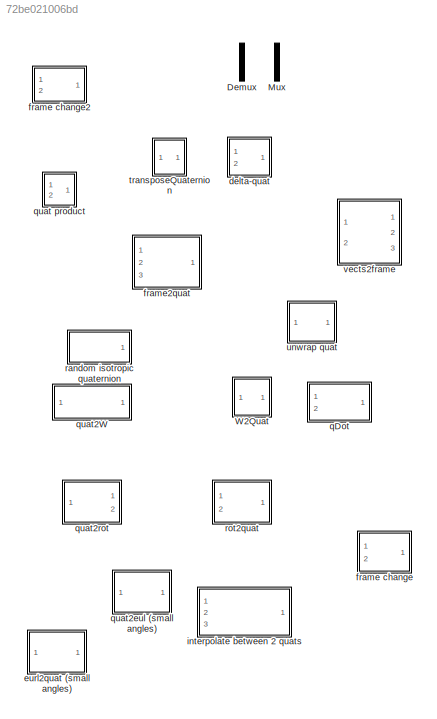
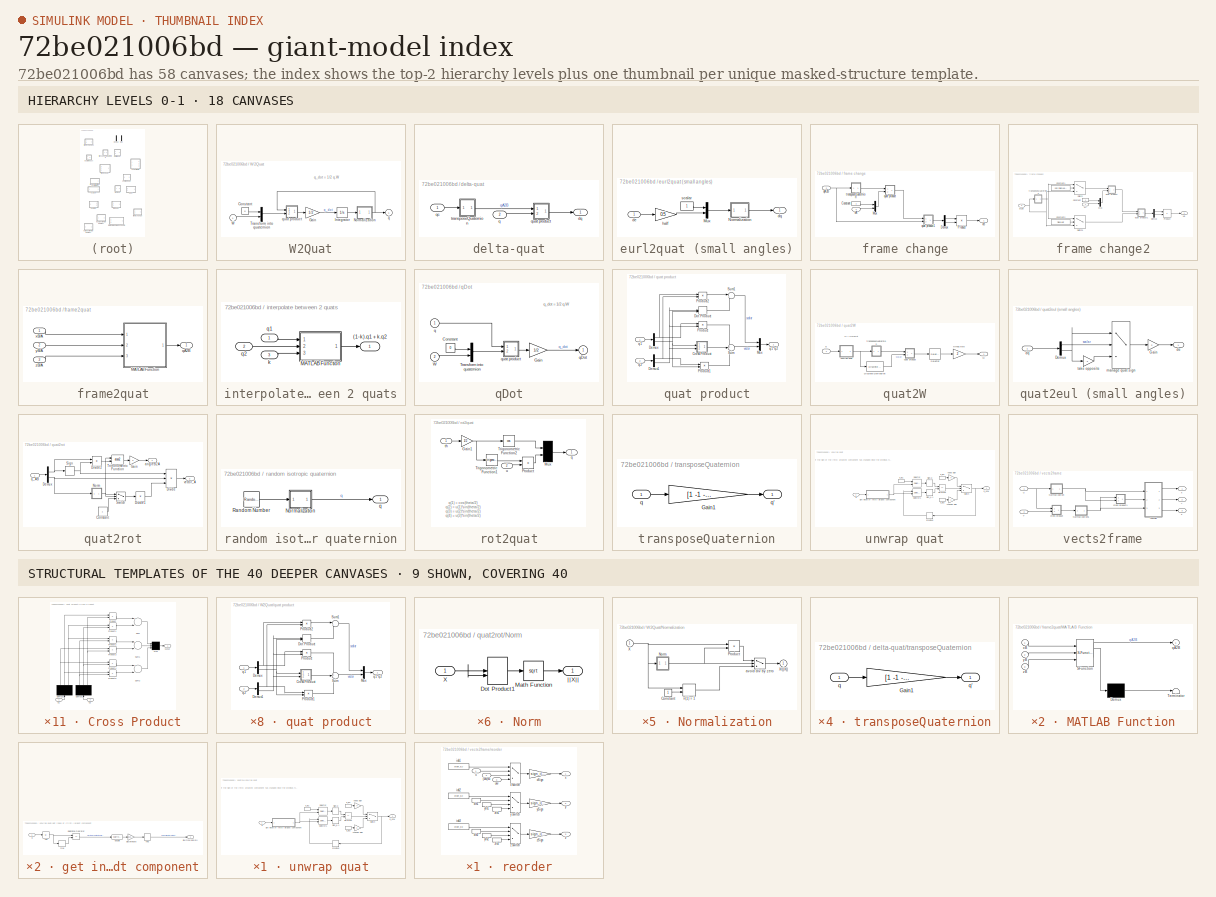
[diagram: thumbnail index - top-2 hierarchy levels (18 canvases) + 9 structural-template representatives of the remaining 40 canvases]
MODEL slx_72be021006bd
KIND model
CONFIG AbsTol = auto
CONFIG FixedStep = auto
CONFIG MaxStep = auto
CONFIG MinStep = auto
CONFIG RelTol = 1e-3
CONFIG SampleTimeConstraint = Unconstrained
CONFIG Solver = ode45
CONFIG SolverMode = Auto
CONFIG SolverName = ode45
CONFIG StartTime = 0.0
CONFIG StopTime = 10.0
BLOCK [Demux] Demux
  DisplayOption = bar
  Outputs = [1 3]
  Ports = [1, 2]
BLOCK [Mux] Mux
  DisplayOption = bar
  Inputs = 2
  Ports = [2, 1]
BLOCK [SubSystem] W2Quat
  Ports = [1, 1]
  RequestExecContextInheritance = off
  Tag = 40
BLOCK [Constant] W2Quat/Constant
  Value = 0
BLOCK [Gain] W2Quat/Gain
  Gain = 1/2
BLOCK [Integrator] W2Quat/Integrator
  InitialCondition = q_init
  Ports = [1, 1]
BLOCK [SubSystem] W2Quat/Normalization
  Ports = [1, 1]
  RequestExecContextInheritance = off
  Tag = 74
BLOCK [Constant] W2Quat/Normalization/Constant
BLOCK [SubSystem] W2Quat/Normalization/Norm
  AttributesFormatString = (#%<Tag>)
  Ports = [1, 1]
  RequestExecContextInheritance = off
BLOCK [DotProduct] W2Quat/Normalization/Norm/Dot Product1
  OutDataTypeStr = Inherit: Inherit via internal rule
BLOCK [Math] W2Quat/Normalization/Norm/Math Function
  Operator = sqrt
  Ports = [1, 1]
BLOCK [Inport] W2Quat/Normalization/Norm/X
  IconDisplay = Port number
BLOCK [Outport] W2Quat/Normalization/Norm/||X||
  IconDisplay = Port number
  InitialOutput = 0
BLOCK [Product] W2Quat/Normalization/Product
  InputSameDT = off
  Inputs = */
  OutDataTypeStr = Inherit: Inherit via internal rule
  Ports = [2, 1]
  SaturateOnIntegerOverflow = off
BLOCK [Inport] W2Quat/Normalization/X
  AttributesFormatString = (#%<Tag>)
  IconDisplay = Port number
BLOCK [Outport] W2Quat/Normalization/X//||X||
  AttributesFormatString = (#%<Tag>)
  IconDisplay = Port number
  InitialOutput = 0
BLOCK [Switch] W2Quat/Normalization/avoid div by zero
  Criteria = u2 ~= 0
  InputSameDT = off
  SaturateOnIntegerOverflow = off
BLOCK [Assignment] W2Quat/Normalization/x(1) = 1
  DiagnosticForDimensions = Warning
  Ports = [2, 1]
BLOCK [Mux] W2Quat/Transform into quaternion
  DisplayOption = bar
  Inputs = 2
  Ports = [2, 1]
BLOCK [Inport] W2Quat/W
  IconDisplay = Port number
  PortDimensions = 3
BLOCK [Outport] W2Quat/q
  IconDisplay = Port number
  InitialOutput = 0
  PortDimensions = 4
BLOCK [SubSystem] W2Quat/quat product
  Ports = [2, 1]
  RequestExecContextInheritance = off
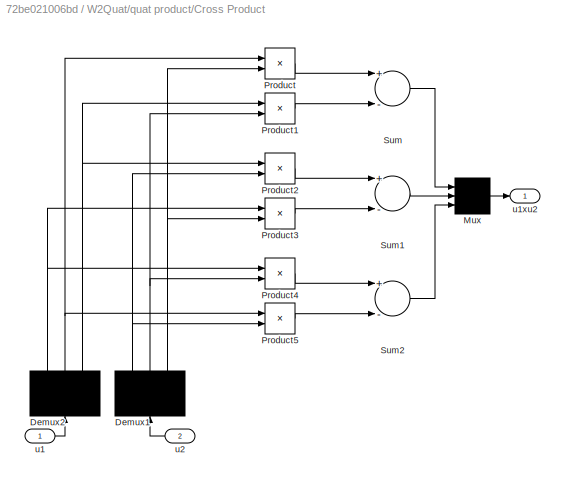
BLOCK [SubSystem] W2Quat/quat product/Cross Product
  Ports = [2, 1]
  RequestExecContextInheritance = off
  Tag = 68
BLOCK [Demux] W2Quat/quat product/Cross Product/Demux1
  Outputs = 3
  Ports = [1, 3]
BLOCK [Demux] W2Quat/quat product/Cross Product/Demux2
  Outputs = 3
  Ports = [1, 3]
BLOCK [Mux] W2Quat/quat product/Cross Product/Mux
  Inputs = 3
  Ports = [3, 1]
BLOCK [Product] W2Quat/quat product/Cross Product/Product
  Ports = [2, 1]
BLOCK [Product] W2Quat/quat product/Cross Product/Product1
  Ports = [2, 1]
BLOCK [Product] W2Quat/quat product/Cross Product/Product2
  Ports = [2, 1]
BLOCK [Product] W2Quat/quat product/Cross Product/Product3
  Ports = [2, 1]
BLOCK [Product] W2Quat/quat product/Cross Product/Product4
  Ports = [2, 1]
BLOCK [Product] W2Quat/quat product/Cross Product/Product5
  Ports = [2, 1]
BLOCK [Sum] W2Quat/quat product/Cross Product/Sum
  Inputs = +-
  Ports = [2, 1]
BLOCK [Sum] W2Quat/quat product/Cross Product/Sum1
  Inputs = +-
  Ports = [2, 1]
BLOCK [Sum] W2Quat/quat product/Cross Product/Sum2
  Inputs = +-
  Ports = [2, 1]
BLOCK [Inport] W2Quat/quat product/Cross Product/u1
  IconDisplay = Port number
BLOCK [Outport] W2Quat/quat product/Cross Product/u1xu2
  IconDisplay = Port number
  InitialOutput = 0
BLOCK [Inport] W2Quat/quat product/Cross Product/u2
  IconDisplay = Port number
  Port = 2
BLOCK [Demux] W2Quat/quat product/Demux
  DisplayOption = bar
  Outputs = [1 3]
  Ports = [1, 2]
BLOCK [Demux] W2Quat/quat product/Demux1
  DisplayOption = bar
  Outputs = [1 3]
  Ports = [1, 2]
BLOCK [DotProduct] W2Quat/quat product/Dot Product
  OutDataTypeStr = Inherit: Inherit via internal rule
BLOCK [Mux] W2Quat/quat product/Mux
  DisplayOption = bar
  Inputs = 2
  Ports = [2, 1]
BLOCK [Product] W2Quat/quat product/Product
  InputSameDT = off
  Ports = [2, 1]
  RndMeth = Floor
BLOCK [Product] W2Quat/quat product/Product1
  InputSameDT = off
  Ports = [2, 1]
  RndMeth = Floor
BLOCK [Product] W2Quat/quat product/Product2
  InputSameDT = off
  Ports = [2, 1]
  RndMeth = Floor
BLOCK [Sum] W2Quat/quat product/Sum
  IconShape = round
  InputSameDT = off
  Inputs = +++
  OutDataTypeStr = Inherit: Inherit via internal rule
  Ports = [3, 1]
BLOCK [Sum] W2Quat/quat product/Sum1
  IconShape = round
  InputSameDT = off
  Inputs = |+-
  OutDataTypeStr = Inherit: Inherit via internal rule
  Ports = [2, 1]
BLOCK [Inport] W2Quat/quat product/q1
  IconDisplay = Port number
BLOCK [Outport] W2Quat/quat product/q1*q2
  IconDisplay = Port number
BLOCK [Inport] W2Quat/quat product/q2
  IconDisplay = Port number
  Port = 2
BLOCK [SubSystem] delta-quat
  Ports = [2, 1]
  RequestExecContextInheritance = off
BLOCK [Outport] delta-quat/dq
  IconDisplay = Port number
  PortDimensions = 4
BLOCK [Inport] delta-quat/q
  IconDisplay = Port number
  Port = 2
  PortDimensions = 4
BLOCK [Inport] delta-quat/qc
  IconDisplay = Port number
  PortDimensions = 4
BLOCK [SubSystem] delta-quat/quat product
  Ports = [2, 1]
  RequestExecContextInheritance = off
BLOCK [SubSystem] delta-quat/quat product/Cross Product
  Ports = [2, 1]
  RequestExecContextInheritance = off
  Tag = 68
BLOCK [Demux] delta-quat/quat product/Cross Product/Demux1
  Outputs = 3
  Ports = [1, 3]
BLOCK [Demux] delta-quat/quat product/Cross Product/Demux2
  Outputs = 3
  Ports = [1, 3]
BLOCK [Mux] delta-quat/quat product/Cross Product/Mux
  Inputs = 3
  Ports = [3, 1]
BLOCK [Product] delta-quat/quat product/Cross Product/Product
  Ports = [2, 1]
BLOCK [Product] delta-quat/quat product/Cross Product/Product1
  Ports = [2, 1]
BLOCK [Product] delta-quat/quat product/Cross Product/Product2
  Ports = [2, 1]
BLOCK [Product] delta-quat/quat product/Cross Product/Product3
  Ports = [2, 1]
BLOCK [Product] delta-quat/quat product/Cross Product/Product4
  Ports = [2, 1]
BLOCK [Product] delta-quat/quat product/Cross Product/Product5
  Ports = [2, 1]
BLOCK [Sum] delta-quat/quat product/Cross Product/Sum
  Inputs = +-
  Ports = [2, 1]
BLOCK [Sum] delta-quat/quat product/Cross Product/Sum1
  Inputs = +-
  Ports = [2, 1]
BLOCK [Sum] delta-quat/quat product/Cross Product/Sum2
  Inputs = +-
  Ports = [2, 1]
BLOCK [Inport] delta-quat/quat product/Cross Product/u1
  IconDisplay = Port number
BLOCK [Outport] delta-quat/quat product/Cross Product/u1xu2
  IconDisplay = Port number
  InitialOutput = 0
BLOCK [Inport] delta-quat/quat product/Cross Product/u2
  IconDisplay = Port number
  Port = 2
BLOCK [Demux] delta-quat/quat product/Demux
  DisplayOption = bar
  Outputs = [1 3]
  Ports = [1, 2]
BLOCK [Demux] delta-quat/quat product/Demux1
  DisplayOption = bar
  Outputs = [1 3]
  Ports = [1, 2]
BLOCK [DotProduct] delta-quat/quat product/Dot Product
  OutDataTypeStr = Inherit: Inherit via internal rule
BLOCK [Mux] delta-quat/quat product/Mux
  DisplayOption = bar
  Inputs = 2
  Ports = [2, 1]
BLOCK [Product] delta-quat/quat product/Product
  InputSameDT = off
  Ports = [2, 1]
  RndMeth = Floor
BLOCK [Product] delta-quat/quat product/Product1
  InputSameDT = off
  Ports = [2, 1]
  RndMeth = Floor
BLOCK [Product] delta-quat/quat product/Product2
  InputSameDT = off
  Ports = [2, 1]
  RndMeth = Floor
BLOCK [Sum] delta-quat/quat product/Sum
  IconShape = round
  InputSameDT = off
  Inputs = +++
  OutDataTypeStr = Inherit: Inherit via internal rule
  Ports = [3, 1]
BLOCK [Sum] delta-quat/quat product/Sum1
  IconShape = round
  InputSameDT = off
  Inputs = |+-
  OutDataTypeStr = Inherit: Inherit via internal rule
  Ports = [2, 1]
BLOCK [Inport] delta-quat/quat product/q1
  IconDisplay = Port number
BLOCK [Outport] delta-quat/quat product/q1*q2
  IconDisplay = Port number
BLOCK [Inport] delta-quat/quat product/q2
  IconDisplay = Port number
  Port = 2
BLOCK [SubSystem] delta-quat/transposeQuaternion
  Ports = [1, 1]
  RequestExecContextInheritance = off
BLOCK [Gain] delta-quat/transposeQuaternion/Gain1
  Gain = [1 -1 -1 -1]
BLOCK [Inport] delta-quat/transposeQuaternion/q
  IconDisplay = Port number
BLOCK [Outport] delta-quat/transposeQuaternion/q'
  IconDisplay = Port number
BLOCK [SubSystem] eurl2quat (small angles)
  Ports = [1, 1]
  RequestExecContextInheritance = off
BLOCK [Mux] eurl2quat (small angles)/Mux
  DisplayOption = bar
  Inputs = 2
  Ports = [2, 1]
BLOCK [SubSystem] eurl2quat (small angles)/Normalization
  Ports = [1, 1]
  RequestExecContextInheritance = off
  Tag = 74
BLOCK [Constant] eurl2quat (small angles)/Normalization/Constant
BLOCK [SubSystem] eurl2quat (small angles)/Normalization/Norm
  AttributesFormatString = (#%<Tag>)
  Ports = [1, 1]
  RequestExecContextInheritance = off
BLOCK [DotProduct] eurl2quat (small angles)/Normalization/Norm/Dot Product1
  OutDataTypeStr = Inherit: Inherit via internal rule
BLOCK [Math] eurl2quat (small angles)/Normalization/Norm/Math Function
  Operator = sqrt
  Ports = [1, 1]
BLOCK [Inport] eurl2quat (small angles)/Normalization/Norm/X
  IconDisplay = Port number
BLOCK [Outport] eurl2quat (small angles)/Normalization/Norm/||X||
  IconDisplay = Port number
  InitialOutput = 0
BLOCK [Product] eurl2quat (small angles)/Normalization/Product
  InputSameDT = off
  Inputs = */
  OutDataTypeStr = Inherit: Inherit via internal rule
  Ports = [2, 1]
  SaturateOnIntegerOverflow = off
BLOCK [Inport] eurl2quat (small angles)/Normalization/X
  AttributesFormatString = (#%<Tag>)
  IconDisplay = Port number
BLOCK [Outport] eurl2quat (small angles)/Normalization/X//||X||
  AttributesFormatString = (#%<Tag>)
  IconDisplay = Port number
  InitialOutput = 0
BLOCK [Switch] eurl2quat (small angles)/Normalization/avoid div by zero
  Criteria = u2 ~= 0
  InputSameDT = off
  SaturateOnIntegerOverflow = off
BLOCK [Assignment] eurl2quat (small angles)/Normalization/x(1) = 1
  DiagnosticForDimensions = Warning
  Ports = [2, 1]
BLOCK [Inport] eurl2quat (small angles)/de
  IconDisplay = Port number
  PortDimensions = 3
BLOCK [Outport] eurl2quat (small angles)/dq
  IconDisplay = Port number
  PortDimensions = 4
BLOCK [Gain] eurl2quat (small angles)/half
  Gain = 0.5
  OutDataTypeStr = Inherit: Inherit via internal rule
  ParamDataTypeStr = Inherit: Inherit via internal rule
  SaturateOnIntegerOverflow = off
BLOCK [Constant] eurl2quat (small angles)/scalar
BLOCK [SubSystem] frame change
  Ports = [2, 1]
  RequestExecContextInheritance = off
BLOCK [Constant] frame change/Constant
BLOCK [Demux] frame change/Demux
  DisplayOption = bar
  Outputs = [1 3]
  Ports = [1, 2]
BLOCK [Mux] frame change/Mux
  DisplayOption = bar
  Inputs = 2
  Ports = [2, 1]
BLOCK [Product] frame change/Product
  InputSameDT = off
  Inputs = /*
  Ports = [2, 1]
  RndMeth = Floor
BLOCK [Inport] frame change/qA2B
  IconDisplay = Port number
  Port = 2
BLOCK [SubSystem] frame change/quat product
  Ports = [2, 1]
  RequestExecContextInheritance = off
BLOCK [SubSystem] frame change/quat product/Cross Product
  Ports = [2, 1]
  RequestExecContextInheritance = off
  Tag = 68
BLOCK [Demux] frame change/quat product/Cross Product/Demux1
  Outputs = 3
  Ports = [1, 3]
BLOCK [Demux] frame change/quat product/Cross Product/Demux2
  Outputs = 3
  Ports = [1, 3]
BLOCK [Mux] frame change/quat product/Cross Product/Mux
  Inputs = 3
  Ports = [3, 1]
BLOCK [Product] frame change/quat product/Cross Product/Product
  Ports = [2, 1]
BLOCK [Product] frame change/quat product/Cross Product/Product1
  Ports = [2, 1]
BLOCK [Product] frame change/quat product/Cross Product/Product2
  Ports = [2, 1]
BLOCK [Product] frame change/quat product/Cross Product/Product3
  Ports = [2, 1]
BLOCK [Product] frame change/quat product/Cross Product/Product4
  Ports = [2, 1]
BLOCK [Product] frame change/quat product/Cross Product/Product5
  Ports = [2, 1]
BLOCK [Sum] frame change/quat product/Cross Product/Sum
  Inputs = +-
  Ports = [2, 1]
BLOCK [Sum] frame change/quat product/Cross Product/Sum1
  Inputs = +-
  Ports = [2, 1]
BLOCK [Sum] frame change/quat product/Cross Product/Sum2
  Inputs = +-
  Ports = [2, 1]
BLOCK [Inport] frame change/quat product/Cross Product/u1
  IconDisplay = Port number
BLOCK [Outport] frame change/quat product/Cross Product/u1xu2
  IconDisplay = Port number
  InitialOutput = 0
BLOCK [Inport] frame change/quat product/Cross Product/u2
  IconDisplay = Port number
  Port = 2
BLOCK [Demux] frame change/quat product/Demux
  DisplayOption = bar
  Outputs = [1 3]
  Ports = [1, 2]
BLOCK [Demux] frame change/quat product/Demux1
  DisplayOption = bar
  Outputs = [1 3]
  Ports = [1, 2]
BLOCK [DotProduct] frame change/quat product/Dot Product
  OutDataTypeStr = Inherit: Inherit via internal rule
BLOCK [Mux] frame change/quat product/Mux
  DisplayOption = bar
  Inputs = 2
  Ports = [2, 1]
BLOCK [Product] frame change/quat product/Product
  InputSameDT = off
  Ports = [2, 1]
  RndMeth = Floor
BLOCK [Product] frame change/quat product/Product1
  InputSameDT = off
  Ports = [2, 1]
  RndMeth = Floor
BLOCK [Product] frame change/quat product/Product2
  InputSameDT = off
  Ports = [2, 1]
  RndMeth = Floor
BLOCK [Sum] frame change/quat product/Sum
  IconShape = round
  InputSameDT = off
  Inputs = +++
  OutDataTypeStr = Inherit: Inherit via internal rule
  Ports = [3, 1]
BLOCK [Sum] frame change/quat product/Sum1
  IconShape = round
  InputSameDT = off
  Inputs = |+-
  OutDataTypeStr = Inherit: Inherit via internal rule
  Ports = [2, 1]
BLOCK [Inport] frame change/quat product/q1
  IconDisplay = Port number
BLOCK [Outport] frame change/quat product/q1*q2
  IconDisplay = Port number
BLOCK [Inport] frame change/quat product/q2
  IconDisplay = Port number
  Port = 2
BLOCK [SubSystem] frame change/quat product1
  Ports = [2, 1]
  RequestExecContextInheritance = off
BLOCK [SubSystem] frame change/quat product1/Cross Product
  Ports = [2, 1]
  RequestExecContextInheritance = off
  Tag = 68
BLOCK [Demux] frame change/quat product1/Cross Product/Demux1
  Outputs = 3
  Ports = [1, 3]
BLOCK [Demux] frame change/quat product1/Cross Product/Demux2
  Outputs = 3
  Ports = [1, 3]
BLOCK [Mux] frame change/quat product1/Cross Product/Mux
  Inputs = 3
  Ports = [3, 1]
BLOCK [Product] frame change/quat product1/Cross Product/Product
  Ports = [2, 1]
BLOCK [Product] frame change/quat product1/Cross Product/Product1
  Ports = [2, 1]
BLOCK [Product] frame change/quat product1/Cross Product/Product2
  Ports = [2, 1]
BLOCK [Product] frame change/quat product1/Cross Product/Product3
  Ports = [2, 1]
BLOCK [Product] frame change/quat product1/Cross Product/Product4
  Ports = [2, 1]
BLOCK [Product] frame change/quat product1/Cross Product/Product5
  Ports = [2, 1]
BLOCK [Sum] frame change/quat product1/Cross Product/Sum
  Inputs = +-
  Ports = [2, 1]
BLOCK [Sum] frame change/quat product1/Cross Product/Sum1
  Inputs = +-
  Ports = [2, 1]
BLOCK [Sum] frame change/quat product1/Cross Product/Sum2
  Inputs = +-
  Ports = [2, 1]
BLOCK [Inport] frame change/quat product1/Cross Product/u1
  IconDisplay = Port number
BLOCK [Outport] frame change/quat product1/Cross Product/u1xu2
  IconDisplay = Port number
  InitialOutput = 0
BLOCK [Inport] frame change/quat product1/Cross Product/u2
  IconDisplay = Port number
  Port = 2
BLOCK [Demux] frame change/quat product1/Demux
  DisplayOption = bar
  Outputs = [1 3]
  Ports = [1, 2]
BLOCK [Demux] frame change/quat product1/Demux1
  DisplayOption = bar
  Outputs = [1 3]
  Ports = [1, 2]
BLOCK [DotProduct] frame change/quat product1/Dot Product
  OutDataTypeStr = Inherit: Inherit via internal rule
BLOCK [Mux] frame change/quat product1/Mux
  DisplayOption = bar
  Inputs = 2
  Ports = [2, 1]
BLOCK [Product] frame change/quat product1/Product
  InputSameDT = off
  Ports = [2, 1]
  RndMeth = Floor
BLOCK [Product] frame change/quat product1/Product1
  InputSameDT = off
  Ports = [2, 1]
  RndMeth = Floor
BLOCK [Product] frame change/quat product1/Product2
  InputSameDT = off
  Ports = [2, 1]
  RndMeth = Floor
BLOCK [Sum] frame change/quat product1/Sum
  IconShape = round
  InputSameDT = off
  Inputs = +++
  OutDataTypeStr = Inherit: Inherit via internal rule
  Ports = [3, 1]
BLOCK [Sum] frame change/quat product1/Sum1
  IconShape = round
  InputSameDT = off
  Inputs = |+-
  OutDataTypeStr = Inherit: Inherit via internal rule
  Ports = [2, 1]
BLOCK [Inport] frame change/quat product1/q1
  IconDisplay = Port number
BLOCK [Outport] frame change/quat product1/q1*q2
  IconDisplay = Port number
BLOCK [Inport] frame change/quat product1/q2
  IconDisplay = Port number
  Port = 2
BLOCK [SubSystem] frame change/transposeQuaternion
  Ports = [1, 1]
  RequestExecContextInheritance = off
BLOCK [Gain] frame change/transposeQuaternion/Gain1
  Gain = [1 -1 -1 -1]
BLOCK [Inport] frame change/transposeQuaternion/q
  IconDisplay = Port number
BLOCK [Outport] frame change/transposeQuaternion/q'
  IconDisplay = Port number
BLOCK [Inport] frame change/vA
  IconDisplay = Port number
BLOCK [Outport] frame change/vB
  IconDisplay = Port number
BLOCK [SubSystem] frame change2
  Ports = [2, 1]
  RequestExecContextInheritance = off
BLOCK [Constant] frame change2/Constant
BLOCK [Constant] frame change2/Constant1
  Value = not(flipQuat)
BLOCK [Constant] frame change2/Constant2
  Value = flipQuat
BLOCK [Demux] frame change2/Demux
  DisplayOption = bar
  Outputs = [1 3]
  Ports = [1, 2]
BLOCK [Mux] frame change2/Mux
  DisplayOption = bar
  Inputs = 2
  Ports = [2, 1]
BLOCK [Product] frame change2/Product
  InputSameDT = off
  Inputs = /*
  Ports = [2, 1]
  RndMeth = Floor
BLOCK [Switch] frame change2/Switch
  Criteria = u2 ~= 0
  InputSameDT = off
  SaturateOnIntegerOverflow = off
BLOCK [Switch] frame change2/Switch1
  Criteria = u2 ~= 0
  InputSameDT = off
  SaturateOnIntegerOverflow = off
BLOCK [Inport] frame change2/qA2B
  IconDisplay = Port number
  Port = 2
  PortDimensions = 4
BLOCK [SubSystem] frame change2/quat product
  Ports = [2, 1]
  RequestExecContextInheritance = off
BLOCK [SubSystem] frame change2/quat product/Cross Product
  Ports = [2, 1]
  RequestExecContextInheritance = off
  Tag = 68
BLOCK [Demux] frame change2/quat product/Cross Product/Demux1
  Outputs = 3
  Ports = [1, 3]
BLOCK [Demux] frame change2/quat product/Cross Product/Demux2
  Outputs = 3
  Ports = [1, 3]
BLOCK [Mux] frame change2/quat product/Cross Product/Mux
  Inputs = 3
  Ports = [3, 1]
BLOCK [Product] frame change2/quat product/Cross Product/Product
  Ports = [2, 1]
BLOCK [Product] frame change2/quat product/Cross Product/Product1
  Ports = [2, 1]
BLOCK [Product] frame change2/quat product/Cross Product/Product2
  Ports = [2, 1]
BLOCK [Product] frame change2/quat product/Cross Product/Product3
  Ports = [2, 1]
BLOCK [Product] frame change2/quat product/Cross Product/Product4
  Ports = [2, 1]
BLOCK [Product] frame change2/quat product/Cross Product/Product5
  Ports = [2, 1]
BLOCK [Sum] frame change2/quat product/Cross Product/Sum
  Inputs = +-
  Ports = [2, 1]
BLOCK [Sum] frame change2/quat product/Cross Product/Sum1
  Inputs = +-
  Ports = [2, 1]
BLOCK [Sum] frame change2/quat product/Cross Product/Sum2
  Inputs = +-
  Ports = [2, 1]
BLOCK [Inport] frame change2/quat product/Cross Product/u1
  IconDisplay = Port number
BLOCK [Outport] frame change2/quat product/Cross Product/u1xu2
  IconDisplay = Port number
  InitialOutput = 0
BLOCK [Inport] frame change2/quat product/Cross Product/u2
  IconDisplay = Port number
  Port = 2
BLOCK [Demux] frame change2/quat product/Demux
  DisplayOption = bar
  Outputs = [1 3]
  Ports = [1, 2]
BLOCK [Demux] frame change2/quat product/Demux1
  DisplayOption = bar
  Outputs = [1 3]
  Ports = [1, 2]
BLOCK [DotProduct] frame change2/quat product/Dot Product
  OutDataTypeStr = Inherit: Inherit via internal rule
BLOCK [Mux] frame change2/quat product/Mux
  DisplayOption = bar
  Inputs = 2
  Ports = [2, 1]
BLOCK [Product] frame change2/quat product/Product
  InputSameDT = off
  Ports = [2, 1]
  RndMeth = Floor
BLOCK [Product] frame change2/quat product/Product1
  InputSameDT = off
  Ports = [2, 1]
  RndMeth = Floor
BLOCK [Product] frame change2/quat product/Product2
  InputSameDT = off
  Ports = [2, 1]
  RndMeth = Floor
BLOCK [Sum] frame change2/quat product/Sum
  IconShape = round
  InputSameDT = off
  Inputs = +++
  OutDataTypeStr = Inherit: Inherit via internal rule
  Ports = [3, 1]
BLOCK [Sum] frame change2/quat product/Sum1
  IconShape = round
  InputSameDT = off
  Inputs = |+-
  OutDataTypeStr = Inherit: Inherit via internal rule
  Ports = [2, 1]
BLOCK [Inport] frame change2/quat product/q1
  IconDisplay = Port number
BLOCK [Outport] frame change2/quat product/q1*q2
  IconDisplay = Port number
BLOCK [Inport] frame change2/quat product/q2
  IconDisplay = Port number
  Port = 2
BLOCK [SubSystem] frame change2/quat product1
  Ports = [2, 1]
  RequestExecContextInheritance = off
BLOCK [SubSystem] frame change2/quat product1/Cross Product
  Ports = [2, 1]
  RequestExecContextInheritance = off
  Tag = 68
BLOCK [Demux] frame change2/quat product1/Cross Product/Demux1
  Outputs = 3
  Ports = [1, 3]
BLOCK [Demux] frame change2/quat product1/Cross Product/Demux2
  Outputs = 3
  Ports = [1, 3]
BLOCK [Mux] frame change2/quat product1/Cross Product/Mux
  Inputs = 3
  Ports = [3, 1]
BLOCK [Product] frame change2/quat product1/Cross Product/Product
  Ports = [2, 1]
BLOCK [Product] frame change2/quat product1/Cross Product/Product1
  Ports = [2, 1]
BLOCK [Product] frame change2/quat product1/Cross Product/Product2
  Ports = [2, 1]
BLOCK [Product] frame change2/quat product1/Cross Product/Product3
  Ports = [2, 1]
BLOCK [Product] frame change2/quat product1/Cross Product/Product4
  Ports = [2, 1]
BLOCK [Product] frame change2/quat product1/Cross Product/Product5
  Ports = [2, 1]
BLOCK [Sum] frame change2/quat product1/Cross Product/Sum
  Inputs = +-
  Ports = [2, 1]
BLOCK [Sum] frame change2/quat product1/Cross Product/Sum1
  Inputs = +-
  Ports = [2, 1]
BLOCK [Sum] frame change2/quat product1/Cross Product/Sum2
  Inputs = +-
  Ports = [2, 1]
BLOCK [Inport] frame change2/quat product1/Cross Product/u1
  IconDisplay = Port number
BLOCK [Outport] frame change2/quat product1/Cross Product/u1xu2
  IconDisplay = Port number
  InitialOutput = 0
BLOCK [Inport] frame change2/quat product1/Cross Product/u2
  IconDisplay = Port number
  Port = 2
BLOCK [Demux] frame change2/quat product1/Demux
  DisplayOption = bar
  Outputs = [1 3]
  Ports = [1, 2]
BLOCK [Demux] frame change2/quat product1/Demux1
  DisplayOption = bar
  Outputs = [1 3]
  Ports = [1, 2]
BLOCK [DotProduct] frame change2/quat product1/Dot Product
  OutDataTypeStr = Inherit: Inherit via internal rule
BLOCK [Mux] frame change2/quat product1/Mux
  DisplayOption = bar
  Inputs = 2
  Ports = [2, 1]
BLOCK [Product] frame change2/quat product1/Product
  InputSameDT = off
  Ports = [2, 1]
  RndMeth = Floor
BLOCK [Product] frame change2/quat product1/Product1
  InputSameDT = off
  Ports = [2, 1]
  RndMeth = Floor
BLOCK [Product] frame change2/quat product1/Product2
  InputSameDT = off
  Ports = [2, 1]
  RndMeth = Floor
BLOCK [Sum] frame change2/quat product1/Sum
  IconShape = round
  InputSameDT = off
  Inputs = +++
  OutDataTypeStr = Inherit: Inherit via internal rule
  Ports = [3, 1]
BLOCK [Sum] frame change2/quat product1/Sum1
  IconShape = round
  InputSameDT = off
  Inputs = |+-
  OutDataTypeStr = Inherit: Inherit via internal rule
  Ports = [2, 1]
BLOCK [Inport] frame change2/quat product1/q1
  IconDisplay = Port number
BLOCK [Outport] frame change2/quat product1/q1*q2
  IconDisplay = Port number
BLOCK [Inport] frame change2/quat product1/q2
  IconDisplay = Port number
  Port = 2
BLOCK [SubSystem] frame change2/transposeQuaternion
  Ports = [1, 1]
  RequestExecContextInheritance = off
BLOCK [Gain] frame change2/transposeQuaternion/Gain1
  Gain = [1 -1 -1 -1]
BLOCK [Inport] frame change2/transposeQuaternion/q
  IconDisplay = Port number
BLOCK [Outport] frame change2/transposeQuaternion/q'
  IconDisplay = Port number
BLOCK [Inport] frame change2/vA
  IconDisplay = Port number
  PortDimensions = 3
BLOCK [Outport] frame change2/vB
  IconDisplay = Port number
  PortDimensions = 3
BLOCK [SubSystem] frame2quat
  Ports = [3, 1]
  RequestExecContextInheritance = off
BLOCK [SubSystem] frame2quat/MATLAB Function
  ErrorFcn = Stateflow.Translate.translate
  PermitHierarchicalResolution = ExplicitOnly
  Ports = [3, 1]
  RequestExecContextInheritance = off
  SFBlockType = MATLAB Function
  TreatAsAtomicUnit = on
BLOCK [Demux] frame2quat/MATLAB Function/ Demux 
  Outputs = 1
  Ports = [1, 1]
BLOCK [S-Function] frame2quat/MATLAB Function/ SFunction 
  FunctionName = sf_sfun
  PortCounts = [3 2]
  Ports = [3, 2]
  Tag = Stateflow S-Function newQuatLib 5
BLOCK [Terminator] frame2quat/MATLAB Function/ Terminator 
BLOCK [Outport] frame2quat/MATLAB Function/qA2B
  IconDisplay = Port number
BLOCK [Inport] frame2quat/MATLAB Function/xB
  IconDisplay = Port number
BLOCK [Inport] frame2quat/MATLAB Function/yB
  IconDisplay = Port number
  Port = 2
BLOCK [Inport] frame2quat/MATLAB Function/zB
  IconDisplay = Port number
  Port = 3
BLOCK [Outport] frame2quat/qA2B
  IconDisplay = Port number
  PortDimensions = 4
BLOCK [Inport] frame2quat/xB//A
  IconDisplay = Port number
  PortDimensions = 3
BLOCK [Inport] frame2quat/yB//A
  IconDisplay = Port number
  Port = 2
  PortDimensions = 3
BLOCK [Inport] frame2quat/zB//A
  IconDisplay = Port number
  Port = 3
  PortDimensions = 3
BLOCK [SubSystem] interpolate between 2 quats
  Ports = [3, 1]
  RequestExecContextInheritance = off
BLOCK [Outport] interpolate between 2 quats/(1-k).q1 + k.q2
  IconDisplay = Port number
BLOCK [SubSystem] interpolate between 2 quats/MATLAB Function
  ErrorFcn = Stateflow.Translate.translate
  PermitHierarchicalResolution = ExplicitOnly
  Ports = [3, 1]
  RequestExecContextInheritance = off
  SFBlockType = MATLAB Function
  TreatAsAtomicUnit = on
BLOCK [Demux] interpolate between 2 quats/MATLAB Function/ Demux 
  Outputs = 1
  Ports = [1, 1]
BLOCK [S-Function] interpolate between 2 quats/MATLAB Function/ SFunction 
  EnableBusSupport = on
  FunctionName = sf_sfun
  PortCounts = [3 2]
  Ports = [3, 2]
  Tag = Stateflow S-Function newQuatLib 2
BLOCK [Terminator] interpolate between 2 quats/MATLAB Function/ Terminator 
BLOCK [Inport] interpolate between 2 quats/MATLAB Function/k
  IconDisplay = Port number
  Port = 3
BLOCK [Inport] interpolate between 2 quats/MATLAB Function/q1
  IconDisplay = Port number
BLOCK [Inport] interpolate between 2 quats/MATLAB Function/q2
  IconDisplay = Port number
  Port = 2
BLOCK [Outport] interpolate between 2 quats/MATLAB Function/qi
  IconDisplay = Port number
BLOCK [Inport] interpolate between 2 quats/k
  IconDisplay = Port number
  Port = 3
BLOCK [Inport] interpolate between 2 quats/q1
  IconDisplay = Port number
BLOCK [Inport] interpolate between 2 quats/q2
  IconDisplay = Port number
  Port = 2
BLOCK [SubSystem] qDot
  Ports = [2, 1]
  RequestExecContextInheritance = off
  Tag = 40
BLOCK [Constant] qDot/Constant
  Value = 0
BLOCK [Gain] qDot/Gain
  Gain = 1/2
BLOCK [Mux] qDot/Transform into quaternion
  DisplayOption = bar
  Inputs = 2
  Ports = [2, 1]
BLOCK [Inport] qDot/W
  IconDisplay = Port number
  Port = 2
  PortDimensions = 3
BLOCK [Inport] qDot/q
  IconDisplay = Port number
  PortDimensions = 4
BLOCK [Outport] qDot/qDot
  IconDisplay = Port number
  InitialOutput = 0
  PortDimensions = 4
BLOCK [SubSystem] qDot/quat product
  Ports = [2, 1]
  RequestExecContextInheritance = off
BLOCK [SubSystem] qDot/quat product/Cross Product
  Ports = [2, 1]
  RequestExecContextInheritance = off
  Tag = 68
BLOCK [Demux] qDot/quat product/Cross Product/Demux1
  Outputs = 3
  Ports = [1, 3]
BLOCK [Demux] qDot/quat product/Cross Product/Demux2
  Outputs = 3
  Ports = [1, 3]
BLOCK [Mux] qDot/quat product/Cross Product/Mux
  Inputs = 3
  Ports = [3, 1]
BLOCK [Product] qDot/quat product/Cross Product/Product
  Ports = [2, 1]
BLOCK [Product] qDot/quat product/Cross Product/Product1
  Ports = [2, 1]
BLOCK [Product] qDot/quat product/Cross Product/Product2
  Ports = [2, 1]
BLOCK [Product] qDot/quat product/Cross Product/Product3
  Ports = [2, 1]
BLOCK [Product] qDot/quat product/Cross Product/Product4
  Ports = [2, 1]
BLOCK [Product] qDot/quat product/Cross Product/Product5
  Ports = [2, 1]
BLOCK [Sum] qDot/quat product/Cross Product/Sum
  Inputs = +-
  Ports = [2, 1]
BLOCK [Sum] qDot/quat product/Cross Product/Sum1
  Inputs = +-
  Ports = [2, 1]
BLOCK [Sum] qDot/quat product/Cross Product/Sum2
  Inputs = +-
  Ports = [2, 1]
BLOCK [Inport] qDot/quat product/Cross Product/u1
  IconDisplay = Port number
BLOCK [Outport] qDot/quat product/Cross Product/u1xu2
  IconDisplay = Port number
  InitialOutput = 0
BLOCK [Inport] qDot/quat product/Cross Product/u2
  IconDisplay = Port number
  Port = 2
BLOCK [Demux] qDot/quat product/Demux
  DisplayOption = bar
  Outputs = [1 3]
  Ports = [1, 2]
BLOCK [Demux] qDot/quat product/Demux1
  DisplayOption = bar
  Outputs = [1 3]
  Ports = [1, 2]
BLOCK [DotProduct] qDot/quat product/Dot Product
  OutDataTypeStr = Inherit: Inherit via internal rule
BLOCK [Mux] qDot/quat product/Mux
  DisplayOption = bar
  Inputs = 2
  Ports = [2, 1]
BLOCK [Product] qDot/quat product/Product
  InputSameDT = off
  Ports = [2, 1]
  RndMeth = Floor
BLOCK [Product] qDot/quat product/Product1
  InputSameDT = off
  Ports = [2, 1]
  RndMeth = Floor
BLOCK [Product] qDot/quat product/Product2
  InputSameDT = off
  Ports = [2, 1]
  RndMeth = Floor
BLOCK [Sum] qDot/quat product/Sum
  IconShape = round
  InputSameDT = off
  Inputs = +++
  OutDataTypeStr = Inherit: Inherit via internal rule
  Ports = [3, 1]
BLOCK [Sum] qDot/quat product/Sum1
  IconShape = round
  InputSameDT = off
  Inputs = |+-
  OutDataTypeStr = Inherit: Inherit via internal rule
  Ports = [2, 1]
BLOCK [Inport] qDot/quat product/q1
  IconDisplay = Port number
BLOCK [Outport] qDot/quat product/q1*q2
  IconDisplay = Port number
BLOCK [Inport] qDot/quat product/q2
  IconDisplay = Port number
  Port = 2
BLOCK [SubSystem] quat product
  Ports = [2, 1]
  RequestExecContextInheritance = off
BLOCK [SubSystem] quat product/Cross Product
  Ports = [2, 1]
  RequestExecContextInheritance = off
  Tag = 68
BLOCK [Demux] quat product/Cross Product/Demux1
  Outputs = 3
  Ports = [1, 3]
BLOCK [Demux] quat product/Cross Product/Demux2
  Outputs = 3
  Ports = [1, 3]
BLOCK [Mux] quat product/Cross Product/Mux
  Inputs = 3
  Ports = [3, 1]
BLOCK [Product] quat product/Cross Product/Product
  Ports = [2, 1]
BLOCK [Product] quat product/Cross Product/Product1
  Ports = [2, 1]
BLOCK [Product] quat product/Cross Product/Product2
  Ports = [2, 1]
BLOCK [Product] quat product/Cross Product/Product3
  Ports = [2, 1]
BLOCK [Product] quat product/Cross Product/Product4
  Ports = [2, 1]
BLOCK [Product] quat product/Cross Product/Product5
  Ports = [2, 1]
BLOCK [Sum] quat product/Cross Product/Sum
  Inputs = +-
  Ports = [2, 1]
BLOCK [Sum] quat product/Cross Product/Sum1
  Inputs = +-
  Ports = [2, 1]
BLOCK [Sum] quat product/Cross Product/Sum2
  Inputs = +-
  Ports = [2, 1]
BLOCK [Inport] quat product/Cross Product/u1
  IconDisplay = Port number
BLOCK [Outport] quat product/Cross Product/u1xu2
  IconDisplay = Port number
  InitialOutput = 0
BLOCK [Inport] quat product/Cross Product/u2
  IconDisplay = Port number
  Port = 2
BLOCK [Demux] quat product/Demux
  DisplayOption = bar
  Outputs = [1 3]
  Ports = [1, 2]
BLOCK [Demux] quat product/Demux1
  DisplayOption = bar
  Outputs = [1 3]
  Ports = [1, 2]
BLOCK [DotProduct] quat product/Dot Product
  OutDataTypeStr = Inherit: Inherit via internal rule
BLOCK [Mux] quat product/Mux
  DisplayOption = bar
  Inputs = 2
  Ports = [2, 1]
BLOCK [Product] quat product/Product
  InputSameDT = off
  Ports = [2, 1]
  RndMeth = Floor
BLOCK [Product] quat product/Product1
  InputSameDT = off
  Ports = [2, 1]
  RndMeth = Floor
BLOCK [Product] quat product/Product2
  InputSameDT = off
  Ports = [2, 1]
  RndMeth = Floor
BLOCK [Sum] quat product/Sum
  IconShape = round
  InputSameDT = off
  Inputs = +++
  OutDataTypeStr = Inherit: Inherit via internal rule
  Ports = [3, 1]
BLOCK [Sum] quat product/Sum1
  IconShape = round
  InputSameDT = off
  Inputs = |+-
  OutDataTypeStr = Inherit: Inherit via internal rule
  Ports = [2, 1]
BLOCK [Inport] quat product/q1
  IconDisplay = Port number
  PortDimensions = 4
BLOCK [Outport] quat product/q1*q2
  IconDisplay = Port number
  PortDimensions = 4
BLOCK [Inport] quat product/q2
  IconDisplay = Port number
  Port = 2
  PortDimensions = 4
BLOCK [SubSystem] quat2W
  Ports = [1, 1]
  RequestExecContextInheritance = off
BLOCK [Reference] quat2W/Discrete Derivative  REF=simulink/Discrete/Discrete Derivative
  DoSatur = off
  ICPrevScaledInput = 0.0
  InputProcessing = Inherited
  LockScale = off
  OutDataType = fixdt(1, 16)
  OutDataTypeStr = Inherit: Inherit via internal rule
  OutMax = []
  OutMin = []
  OutScaling = 2^-10
  OutputDataTypeScalingMode = Inherit via internal rule
  Ports = [1, 1]
  RndMeth = Floor
  SourceBlock = simulink/Discrete/Discrete Derivative
  SourceType = Discrete Derivative
  gainval = 1.0
BLOCK [Selector] quat2W/Selector
  Indices = [2:4]
  InputPortWidth = 4
  Ports = [1, 1]
BLOCK [Outport] quat2W/W
  IconDisplay = Port number
  PortDimensions = 3
BLOCK [Inport] quat2W/q
  IconDisplay = Port number
  PortDimensions = 4
  SampleTime = Ts
BLOCK [SubSystem] quat2W/quat product
  Ports = [2, 1]
  RequestExecContextInheritance = off
BLOCK [SubSystem] quat2W/quat product/Cross Product
  Ports = [2, 1]
  RequestExecContextInheritance = off
  Tag = 68
BLOCK [Demux] quat2W/quat product/Cross Product/Demux1
  Outputs = 3
  Ports = [1, 3]
BLOCK [Demux] quat2W/quat product/Cross Product/Demux2
  Outputs = 3
  Ports = [1, 3]
BLOCK [Mux] quat2W/quat product/Cross Product/Mux
  Inputs = 3
  Ports = [3, 1]
BLOCK [Product] quat2W/quat product/Cross Product/Product
  Ports = [2, 1]
BLOCK [Product] quat2W/quat product/Cross Product/Product1
  Ports = [2, 1]
BLOCK [Product] quat2W/quat product/Cross Product/Product2
  Ports = [2, 1]
BLOCK [Product] quat2W/quat product/Cross Product/Product3
  Ports = [2, 1]
BLOCK [Product] quat2W/quat product/Cross Product/Product4
  Ports = [2, 1]
BLOCK [Product] quat2W/quat product/Cross Product/Product5
  Ports = [2, 1]
BLOCK [Sum] quat2W/quat product/Cross Product/Sum
  Inputs = +-
  Ports = [2, 1]
BLOCK [Sum] quat2W/quat product/Cross Product/Sum1
  Inputs = +-
  Ports = [2, 1]
BLOCK [Sum] quat2W/quat product/Cross Product/Sum2
  Inputs = +-
  Ports = [2, 1]
BLOCK [Inport] quat2W/quat product/Cross Product/u1
  IconDisplay = Port number
BLOCK [Outport] quat2W/quat product/Cross Product/u1xu2
  IconDisplay = Port number
  InitialOutput = 0
BLOCK [Inport] quat2W/quat product/Cross Product/u2
  IconDisplay = Port number
  Port = 2
BLOCK [Demux] quat2W/quat product/Demux
  DisplayOption = bar
  Outputs = [1 3]
  Ports = [1, 2]
BLOCK [Demux] quat2W/quat product/Demux1
  DisplayOption = bar
  Outputs = [1 3]
  Ports = [1, 2]
BLOCK [DotProduct] quat2W/quat product/Dot Product
  OutDataTypeStr = Inherit: Inherit via internal rule
BLOCK [Mux] quat2W/quat product/Mux
  DisplayOption = bar
  Inputs = 2
  Ports = [2, 1]
BLOCK [Product] quat2W/quat product/Product
  InputSameDT = off
  Ports = [2, 1]
  RndMeth = Floor
BLOCK [Product] quat2W/quat product/Product1
  InputSameDT = off
  Ports = [2, 1]
  RndMeth = Floor
BLOCK [Product] quat2W/quat product/Product2
  InputSameDT = off
  Ports = [2, 1]
  RndMeth = Floor
BLOCK [Sum] quat2W/quat product/Sum
  IconShape = round
  InputSameDT = off
  Inputs = +++
  OutDataTypeStr = Inherit: Inherit via internal rule
  Ports = [3, 1]
BLOCK [Sum] quat2W/quat product/Sum1
  IconShape = round
  InputSameDT = off
  Inputs = |+-
  OutDataTypeStr = Inherit: Inherit via internal rule
  Ports = [2, 1]
BLOCK [Inport] quat2W/quat product/q1
  IconDisplay = Port number
BLOCK [Outport] quat2W/quat product/q1*q2
  IconDisplay = Port number
BLOCK [Inport] quat2W/quat product/q2
  IconDisplay = Port number
  Port = 2
BLOCK [Gain] quat2W/times two
  Gain = 2
  OutDataTypeStr = Inherit: Inherit via internal rule
  ParamDataTypeStr = Inherit: Inherit via internal rule
  SaturateOnIntegerOverflow = off
BLOCK [SubSystem] quat2W/transposeQuaternion
  Ports = [1, 1]
  RequestExecContextInheritance = off
BLOCK [Gain] quat2W/transposeQuaternion/Gain1
  Gain = [1 -1 -1 -1]
BLOCK [Inport] quat2W/transposeQuaternion/q
  IconDisplay = Port number
BLOCK [Outport] quat2W/transposeQuaternion/q'
  IconDisplay = Port number
BLOCK [SubSystem] quat2W/unwrap quat
  Ports = [1, 1]
  RequestExecContextInheritance = off
BLOCK [Selector] quat2W/unwrap quat/Selector
  IndexOptions = Index vector (port)
  Indices = [1 3]
  InputPortWidth = 4
  Ports = [2, 1]
BLOCK [Selector] quat2W/unwrap quat/Selector1
  IndexOptions = Index vector (port)
  Indices = [1 3]
  InputPortWidth = 4
  Ports = [2, 1]
BLOCK [Signum] quat2W/unwrap quat/Sign_k
BLOCK [Signum] quat2W/unwrap quat/Sign_k-1
BLOCK [Switch] quat2W/unwrap quat/Switch
  Criteria = u2 ~= 0
  InputSameDT = off
  SaturateOnIntegerOverflow = off
BLOCK [Gain] quat2W/unwrap quat/change sign
  Gain = -1
  OutDataTypeStr = Inherit: Inherit via internal rule
  ParamDataTypeStr = Inherit: Inherit via internal rule
  SaturateOnIntegerOverflow = off
BLOCK [RelationalOperator] quat2W/unwrap quat/different
  InputSameDT = off
  Operator = ==
  OutDataTypeStr = boolean
  Ports = [2, 1]
BLOCK [SubSystem] quat2W/unwrap quat/get index of (first) largest component
  Ports = [1, 1]
  RequestExecContextInheritance = off
BLOCK [Abs] quat2W/unwrap quat/get index of (first) largest component/Abs
  SaturateOnIntegerOverflow = off
BLOCK [RelationalOperator] quat2W/unwrap quat/get index of (first) largest component/Relational Operator
  InputSameDT = off
  Operator = ==
  Ports = [2, 1]
BLOCK [Gain] quat2W/unwrap quat/get index of (first) largest component/discriminate
  Gain = [1 2 3 4]
  OutDataTypeStr = Inherit: Inherit via internal rule
  ParamDataTypeStr = Inherit: Inherit via internal rule
  SaturateOnIntegerOverflow = off
BLOCK [DataTypeConversion] quat2W/unwrap quat/get index of (first) largest component/double
  OutDataTypeStr = double
  RndMeth = Floor
  SaturateOnIntegerOverflow = off
BLOCK [MinMax] quat2W/unwrap quat/get index of (first) largest component/find
  Function = max
  InputSameDT = off
  Ports = [1, 1]
  SaturateOnIntegerOverflow = off
BLOCK [Outport] quat2W/unwrap quat/get index of (first) largest component/idx(max(abs(q))
  IconDisplay = Port number
BLOCK [MinMax] quat2W/unwrap quat/get index of (first) largest component/max
  Function = max
  InputSameDT = off
  Ports = [1, 1]
  SaturateOnIntegerOverflow = off
BLOCK [Inport] quat2W/unwrap quat/get index of (first) largest component/q
  IconDisplay = Port number
BLOCK [Gain] quat2W/unwrap quat/keep sign
  OutDataTypeStr = Inherit: Inherit via internal rule
  ParamDataTypeStr = Inherit: Inherit via internal rule
  SaturateOnIntegerOverflow = off
BLOCK [Memory] quat2W/unwrap quat/previous
  InheritSampleTime = on
  X0 = [1 1 1 1]
BLOCK [Inport] quat2W/unwrap quat/q
  IconDisplay = Port number
BLOCK [InportShadow] quat2W/unwrap quat/q_in1
  IconDisplay = Port number
BLOCK [InportShadow] quat2W/unwrap quat/q_in2
  IconDisplay = Port number
BLOCK [InportShadow] quat2W/unwrap quat/q_in3
  IconDisplay = Port number
BLOCK [Outport] quat2W/unwrap quat/q_unw
  IconDisplay = Port number
BLOCK [SubSystem] quat2eul (small angles)
  Ports = [1, 1]
  RequestExecContextInheritance = off
BLOCK [Demux] quat2eul (small angles)/Demux
  DisplayOption = bar
  Outputs = [1 3]
  Ports = [1, 2]
BLOCK [Gain] quat2eul (small angles)/Gain
  Gain = 2
  OutDataTypeStr = Inherit: Inherit via internal rule
  ParamDataTypeStr = Inherit: Inherit via internal rule
  SaturateOnIntegerOverflow = off
BLOCK [Outport] quat2eul (small angles)/de
  IconDisplay = Port number
  PortDimensions = 3
BLOCK [Inport] quat2eul (small angles)/dq
  IconDisplay = Port number
  PortDimensions = 4
BLOCK [Switch] quat2eul (small angles)/manage quat sign
  Criteria = u2 > Threshold
  InputSameDT = off
  SaturateOnIntegerOverflow = off
BLOCK [Gain] quat2eul (small angles)/take opposite
  Gain = -1
  OutDataTypeStr = Inherit: Inherit via internal rule
  ParamDataTypeStr = Inherit: Inherit via internal rule
  SaturateOnIntegerOverflow = off
BLOCK [SubSystem] quat2rot
  Ports = [1, 2]
  RequestExecContextInheritance = off
BLOCK [Constant] quat2rot/Constant
BLOCK [Demux] quat2rot/Demux
  DisplayOption = bar
  Outputs = [1 3]
  Ports = [1, 2]
BLOCK [Product] quat2rot/Divide
  InputSameDT = off
  Inputs = ***
  OutDataTypeStr = Inherit: Inherit via internal rule
  Ports = [3, 1]
  RndMeth = Floor
  SaturateOnIntegerOverflow = off
BLOCK [Product] quat2rot/Divide1
  InputSameDT = off
  Inputs = /
  OutDataTypeStr = Inherit: Inherit via internal rule
  Ports = [1, 1]
  RndMeth = Floor
  SaturateOnIntegerOverflow = off
BLOCK [Product] quat2rot/Divide2
  InputSameDT = off
  Inputs = **
  OutDataTypeStr = Inherit: Inherit via internal rule
  Ports = [2, 1]
  RndMeth = Floor
  SaturateOnIntegerOverflow = off
BLOCK [Gain] quat2rot/Gain
  Gain = 2
  OutDataTypeStr = Inherit: Inherit via internal rule
  ParamDataTypeStr = Inherit: Inherit via internal rule
  SaturateOnIntegerOverflow = off
BLOCK [SubSystem] quat2rot/Norm
  Ports = [1, 1]
  RequestExecContextInheritance = off
BLOCK [DotProduct] quat2rot/Norm/Dot Product1
  OutDataTypeStr = Inherit: Inherit via internal rule
BLOCK [Math] quat2rot/Norm/Math Function
  Operator = sqrt
  Ports = [1, 1]
BLOCK [Inport] quat2rot/Norm/X
  IconDisplay = Port number
BLOCK [Outport] quat2rot/Norm/||X||
  IconDisplay = Port number
  InitialOutput = 0
BLOCK [Signum] quat2rot/Sign
  ZeroCross = off
BLOCK [Switch] quat2rot/Switch
  Criteria = u2 ~= 0
  InputSameDT = off
  SaturateOnIntegerOverflow = off
  ZeroCross = off
BLOCK [Trigonometry] quat2rot/Trigonometric Function
  Operator = atan2
  Ports = [2, 1]
BLOCK [Outport] quat2rot/angleB2A
  IconDisplay = Port number
  PortDimensions = 1
BLOCK [Inport] quat2rot/q_AB
  IconDisplay = Port number
  PortDimensions = 4
BLOCK [Outport] quat2rot/vector_A
  IconDisplay = Port number
  Port = 2
  PortDimensions = 3
BLOCK [SubSystem] random isotropic quaternion
  Ports = [0, 1]
  RequestExecContextInheritance = off
BLOCK [SubSystem] random isotropic quaternion/Normalization
  Ports = [1, 1]
  RequestExecContextInheritance = off
  Tag = 74
BLOCK [Constant] random isotropic quaternion/Normalization/Constant
BLOCK [SubSystem] random isotropic quaternion/Normalization/Norm
  AttributesFormatString = (#%<Tag>)
  Ports = [1, 1]
  RequestExecContextInheritance = off
BLOCK [DotProduct] random isotropic quaternion/Normalization/Norm/Dot Product1
  OutDataTypeStr = Inherit: Inherit via internal rule
BLOCK [Math] random isotropic quaternion/Normalization/Norm/Math Function
  Operator = sqrt
  Ports = [1, 1]
BLOCK [Inport] random isotropic quaternion/Normalization/Norm/X
  IconDisplay = Port number
BLOCK [Outport] random isotropic quaternion/Normalization/Norm/||X||
  IconDisplay = Port number
  InitialOutput = 0
BLOCK [Product] random isotropic quaternion/Normalization/Product
  InputSameDT = off
  Inputs = */
  OutDataTypeStr = Inherit: Inherit via internal rule
  Ports = [2, 1]
  SaturateOnIntegerOverflow = off
BLOCK [Inport] random isotropic quaternion/Normalization/X
  AttributesFormatString = (#%<Tag>)
  IconDisplay = Port number
BLOCK [Outport] random isotropic quaternion/Normalization/X//||X||
  AttributesFormatString = (#%<Tag>)
  IconDisplay = Port number
  InitialOutput = 0
BLOCK [Switch] random isotropic quaternion/Normalization/avoid div by zero
  Criteria = u2 ~= 0
  InputSameDT = off
  SaturateOnIntegerOverflow = off
BLOCK [Assignment] random isotropic quaternion/Normalization/x(1) = 1
  DiagnosticForDimensions = Warning
  Ports = [2, 1]
BLOCK [RandomNumber] random isotropic quaternion/Random Number
  SampleTime = Ts
  Seed = ceil(rand(4,1)*10000)
BLOCK [Outport] random isotropic quaternion/q
  IconDisplay = Port number
BLOCK [SubSystem] rot2quat
  Ports = [2, 1]
  RequestExecContextInheritance = off
BLOCK [Gain] rot2quat/Gain1
  Gain = 1/2
BLOCK [Mux] rot2quat/Mux
  Inputs = 2
  Ports = [2, 1]
BLOCK [Product] rot2quat/Product
  Ports = [2, 1]
BLOCK [Trigonometry] rot2quat/Trigonometric Function1
  Ports = [1, 1]
BLOCK [Trigonometry] rot2quat/Trigonometric Function2
  Operator = cos
  Ports = [1, 1]
BLOCK [Outport] rot2quat/q
  IconDisplay = Port number
  PortDimensions = 4
BLOCK [Inport] rot2quat/th
  IconDisplay = Port number
  PortDimensions = 1
BLOCK [Inport] rot2quat/u
  IconDisplay = Port number
  Port = 2
  PortDimensions = 3
BLOCK [SubSystem] transposeQuaternion
  Ports = [1, 1]
  RequestExecContextInheritance = off
BLOCK [Gain] transposeQuaternion/Gain1
  Gain = [1 -1 -1 -1]
BLOCK [Inport] transposeQuaternion/q
  IconDisplay = Port number
  PortDimensions = 4
BLOCK [Outport] transposeQuaternion/q'
  IconDisplay = Port number
  PortDimensions = 4
BLOCK [SubSystem] unwrap quat
  Ports = [1, 1]
  RequestExecContextInheritance = off
BLOCK [Selector] unwrap quat/Selector
  IndexOptions = Index vector (port)
  Indices = [1 3]
  InputPortWidth = 4
  Ports = [2, 1]
BLOCK [Selector] unwrap quat/Selector1
  IndexOptions = Index vector (port)
  Indices = [1 3]
  InputPortWidth = 4
  Ports = [2, 1]
BLOCK [Signum] unwrap quat/Sign_k
BLOCK [Signum] unwrap quat/Sign_k-1
BLOCK [Switch] unwrap quat/Switch
  Criteria = u2 ~= 0
  InputSameDT = off
  SaturateOnIntegerOverflow = off
BLOCK [Gain] unwrap quat/change sign
  Gain = -1
  OutDataTypeStr = Inherit: Inherit via internal rule
  ParamDataTypeStr = Inherit: Inherit via internal rule
  SaturateOnIntegerOverflow = off
BLOCK [RelationalOperator] unwrap quat/different
  InputSameDT = off
  Operator = ==
  OutDataTypeStr = boolean
  Ports = [2, 1]
BLOCK [SubSystem] unwrap quat/get index of (first) largest component
  Ports = [1, 1]
  RequestExecContextInheritance = off
BLOCK [Abs] unwrap quat/get index of (first) largest component/Abs
  SaturateOnIntegerOverflow = off
BLOCK [RelationalOperator] unwrap quat/get index of (first) largest component/Relational Operator
  InputSameDT = off
  Operator = ==
  Ports = [2, 1]
BLOCK [Gain] unwrap quat/get index of (first) largest component/discriminate
  Gain = [1 2 3 4]
  OutDataTypeStr = Inherit: Inherit via internal rule
  ParamDataTypeStr = Inherit: Inherit via internal rule
  SaturateOnIntegerOverflow = off
BLOCK [DataTypeConversion] unwrap quat/get index of (first) largest component/double
  OutDataTypeStr = double
  RndMeth = Floor
  SaturateOnIntegerOverflow = off
BLOCK [MinMax] unwrap quat/get index of (first) largest component/find
  Function = max
  InputSameDT = off
  Ports = [1, 1]
  SaturateOnIntegerOverflow = off
BLOCK [Outport] unwrap quat/get index of (first) largest component/idx(max(abs(q))
  IconDisplay = Port number
BLOCK [MinMax] unwrap quat/get index of (first) largest component/max
  Function = max
  InputSameDT = off
  Ports = [1, 1]
  SaturateOnIntegerOverflow = off
BLOCK [Inport] unwrap quat/get index of (first) largest component/q
  IconDisplay = Port number
BLOCK [Gain] unwrap quat/keep sign
  OutDataTypeStr = Inherit: Inherit via internal rule
  ParamDataTypeStr = Inherit: Inherit via internal rule
  SaturateOnIntegerOverflow = off
BLOCK [Memory] unwrap quat/previous
  InheritSampleTime = on
  X0 = [1 1 1 1]
BLOCK [Inport] unwrap quat/q
  IconDisplay = Port number
BLOCK [InportShadow] unwrap quat/q_in1
  IconDisplay = Port number
BLOCK [InportShadow] unwrap quat/q_in2
  IconDisplay = Port number
BLOCK [InportShadow] unwrap quat/q_in3
  IconDisplay = Port number
BLOCK [Outport] unwrap quat/q_unw
  IconDisplay = Port number
BLOCK [SubSystem] vects2frame
  Ports = [2, 3]
  RequestExecContextInheritance = off
BLOCK [SubSystem] vects2frame/Normalization
  Ports = [1, 1]
  RequestExecContextInheritance = off
  Tag = 74
BLOCK [Constant] vects2frame/Normalization/Constant
BLOCK [SubSystem] vects2frame/Normalization/Norm
  AttributesFormatString = (#%<Tag>)
  Ports = [1, 1]
  RequestExecContextInheritance = off
BLOCK [DotProduct] vects2frame/Normalization/Norm/Dot Product1
  OutDataTypeStr = Inherit: Inherit via internal rule
BLOCK [Math] vects2frame/Normalization/Norm/Math Function
  Operator = sqrt
  Ports = [1, 1]
BLOCK [Inport] vects2frame/Normalization/Norm/X
  IconDisplay = Port number
BLOCK [Outport] vects2frame/Normalization/Norm/||X||
  IconDisplay = Port number
  InitialOutput = 0
BLOCK [Product] vects2frame/Normalization/Product
  InputSameDT = off
  Inputs = */
  OutDataTypeStr = Inherit: Inherit via internal rule
  Ports = [2, 1]
  SaturateOnIntegerOverflow = off
BLOCK [Inport] vects2frame/Normalization/X
  AttributesFormatString = (#%<Tag>)
  IconDisplay = Port number
BLOCK [Outport] vects2frame/Normalization/X//||X||
  AttributesFormatString = (#%<Tag>)
  IconDisplay = Port number
  InitialOutput = 0
BLOCK [Switch] vects2frame/Normalization/avoid div by zero
  Criteria = u2 ~= 0
  InputSameDT = off
  SaturateOnIntegerOverflow = off
BLOCK [Assignment] vects2frame/Normalization/x(1) = 1
  DiagnosticForDimensions = Warning
  Ports = [2, 1]
BLOCK [SubSystem] vects2frame/Normalization1
  Ports = [1, 1]
  RequestExecContextInheritance = off
  Tag = 74
BLOCK [Constant] vects2frame/Normalization1/Constant
BLOCK [SubSystem] vects2frame/Normalization1/Norm
  AttributesFormatString = (#%<Tag>)
  Ports = [1, 1]
  RequestExecContextInheritance = off
BLOCK [DotProduct] vects2frame/Normalization1/Norm/Dot Product1
  OutDataTypeStr = Inherit: Inherit via internal rule
BLOCK [Math] vects2frame/Normalization1/Norm/Math Function
  Operator = sqrt
  Ports = [1, 1]
BLOCK [Inport] vects2frame/Normalization1/Norm/X
  IconDisplay = Port number
BLOCK [Outport] vects2frame/Normalization1/Norm/||X||
  IconDisplay = Port number
  InitialOutput = 0
BLOCK [Product] vects2frame/Normalization1/Product
  InputSameDT = off
  Inputs = */
  OutDataTypeStr = Inherit: Inherit via internal rule
  Ports = [2, 1]
  SaturateOnIntegerOverflow = off
BLOCK [Inport] vects2frame/Normalization1/X
  AttributesFormatString = (#%<Tag>)
  IconDisplay = Port number
BLOCK [Outport] vects2frame/Normalization1/X//||X||
  AttributesFormatString = (#%<Tag>)
  IconDisplay = Port number
  InitialOutput = 0
BLOCK [Switch] vects2frame/Normalization1/avoid div by zero
  Criteria = u2 ~= 0
  InputSameDT = off
  SaturateOnIntegerOverflow = off
BLOCK [Assignment] vects2frame/Normalization1/x(1) = 1
  DiagnosticForDimensions = Warning
  Ports = [2, 1]
BLOCK [SubSystem] vects2frame/cross product
  Ports = [2, 1]
  RequestExecContextInheritance = off
  Tag = 68
BLOCK [Demux] vects2frame/cross product/Demux1
  Outputs = 3
  Ports = [1, 3]
BLOCK [Demux] vects2frame/cross product/Demux2
  Outputs = 3
  Ports = [1, 3]
BLOCK [Mux] vects2frame/cross product/Mux
  Inputs = 3
  Ports = [3, 1]
BLOCK [Product] vects2frame/cross product/Product
  Ports = [2, 1]
BLOCK [Product] vects2frame/cross product/Product1
  Ports = [2, 1]
BLOCK [Product] vects2frame/cross product/Product2
  Ports = [2, 1]
BLOCK [Product] vects2frame/cross product/Product3
  Ports = [2, 1]
BLOCK [Product] vects2frame/cross product/Product4
  Ports = [2, 1]
BLOCK [Product] vects2frame/cross product/Product5
  Ports = [2, 1]
BLOCK [Sum] vects2frame/cross product/Sum
  Inputs = +-
  Ports = [2, 1]
BLOCK [Sum] vects2frame/cross product/Sum1
  Inputs = +-
  Ports = [2, 1]
BLOCK [Sum] vects2frame/cross product/Sum2
  Inputs = +-
  Ports = [2, 1]
BLOCK [Inport] vects2frame/cross product/u1
  IconDisplay = Port number
  PortDimensions = 3
BLOCK [Outport] vects2frame/cross product/u1xu2
  IconDisplay = Port number
  InitialOutput = 0
  PortDimensions = 3
BLOCK [Inport] vects2frame/cross product/u2
  IconDisplay = Port number
  Port = 2
  PortDimensions = 3
BLOCK [SubSystem] vects2frame/cross product1
  Ports = [2, 1]
  RequestExecContextInheritance = off
  Tag = 68
BLOCK [Demux] vects2frame/cross product1/Demux1
  Outputs = 3
  Ports = [1, 3]
BLOCK [Demux] vects2frame/cross product1/Demux2
  Outputs = 3
  Ports = [1, 3]
BLOCK [Mux] vects2frame/cross product1/Mux
  Inputs = 3
  Ports = [3, 1]
BLOCK [Product] vects2frame/cross product1/Product
  Ports = [2, 1]
BLOCK [Product] vects2frame/cross product1/Product1
  Ports = [2, 1]
BLOCK [Product] vects2frame/cross product1/Product2
  Ports = [2, 1]
BLOCK [Product] vects2frame/cross product1/Product3
  Ports = [2, 1]
BLOCK [Product] vects2frame/cross product1/Product4
  Ports = [2, 1]
BLOCK [Product] vects2frame/cross product1/Product5
  Ports = [2, 1]
BLOCK [Sum] vects2frame/cross product1/Sum
  Inputs = +-
  Ports = [2, 1]
BLOCK [Sum] vects2frame/cross product1/Sum1
  Inputs = +-
  Ports = [2, 1]
BLOCK [Sum] vects2frame/cross product1/Sum2
  Inputs = +-
  Ports = [2, 1]
BLOCK [Inport] vects2frame/cross product1/u1
  IconDisplay = Port number
  PortDimensions = 3
BLOCK [Outport] vects2frame/cross product1/u1xu2
  IconDisplay = Port number
  InitialOutput = 0
  PortDimensions = 3
BLOCK [Inport] vects2frame/cross product1/u2
  IconDisplay = Port number
  Port = 2
  PortDimensions = 3
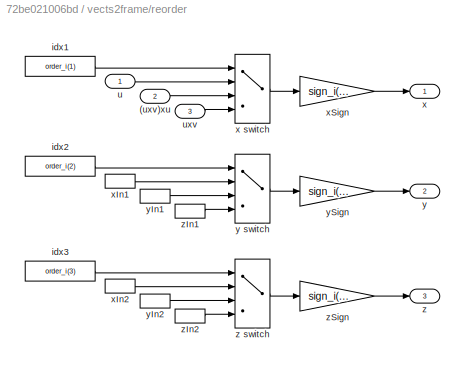
BLOCK [SubSystem] vects2frame/reorder
  Ports = [3, 3]
  RequestExecContextInheritance = off
BLOCK [Inport] vects2frame/reorder/(uxv)xu
  IconDisplay = Port number
  Port = 2
BLOCK [Constant] vects2frame/reorder/idx1
  Value = order_i(1)
BLOCK [Constant] vects2frame/reorder/idx2
  Value = order_i(2)
BLOCK [Constant] vects2frame/reorder/idx3
  Value = order_i(3)
BLOCK [Inport] vects2frame/reorder/u
  IconDisplay = Port number
BLOCK [Inport] vects2frame/reorder/uxv
  IconDisplay = Port number
  Port = 3
BLOCK [Outport] vects2frame/reorder/x
  IconDisplay = Port number
BLOCK [MultiPortSwitch] vects2frame/reorder/x switch
  InputSameDT = off
  Ports = [4, 1]
  SaturateOnIntegerOverflow = off
BLOCK [InportShadow] vects2frame/reorder/xIn1
  IconDisplay = Port number
BLOCK [InportShadow] vects2frame/reorder/xIn2
  IconDisplay = Port number
BLOCK [Gain] vects2frame/reorder/xSign
  Gain = sign_i(1)
  OutDataTypeStr = Inherit: Inherit via internal rule
  ParamDataTypeStr = Inherit: Inherit via internal rule
  SaturateOnIntegerOverflow = off
BLOCK [Outport] vects2frame/reorder/y
  IconDisplay = Port number
  Port = 2
BLOCK [MultiPortSwitch] vects2frame/reorder/y switch
  InputSameDT = off
  Ports = [4, 1]
  SaturateOnIntegerOverflow = off
BLOCK [InportShadow] vects2frame/reorder/yIn1
  IconDisplay = Port number
  Port = 2
BLOCK [InportShadow] vects2frame/reorder/yIn2
  IconDisplay = Port number
  Port = 2
BLOCK [Gain] vects2frame/reorder/ySign
  Gain = sign_i(2)
  OutDataTypeStr = Inherit: Inherit via internal rule
  ParamDataTypeStr = Inherit: Inherit via internal rule
  SaturateOnIntegerOverflow = off
BLOCK [Outport] vects2frame/reorder/z
  IconDisplay = Port number
  Port = 3
BLOCK [MultiPortSwitch] vects2frame/reorder/z switch
  InputSameDT = off
  Ports = [4, 1]
  SaturateOnIntegerOverflow = off
BLOCK [InportShadow] vects2frame/reorder/zIn1
  IconDisplay = Port number
  Port = 3
BLOCK [InportShadow] vects2frame/reorder/zIn2
  IconDisplay = Port number
  Port = 3
BLOCK [Gain] vects2frame/reorder/zSign
  Gain = sign_i(3)
  OutDataTypeStr = Inherit: Inherit via internal rule
  ParamDataTypeStr = Inherit: Inherit via internal rule
  SaturateOnIntegerOverflow = off
BLOCK [Inport] vects2frame/u
  IconDisplay = Port number
  PortDimensions = 3
BLOCK [Inport] vects2frame/v
  IconDisplay = Port number
  Port = 2
  PortDimensions = 3
BLOCK [Outport] vects2frame/x
  IconDisplay = Port number
BLOCK [Outport] vects2frame/y
  IconDisplay = Port number
  Port = 2
BLOCK [Outport] vects2frame/z
  IconDisplay = Port number
  Port = 3
ANNOTATION W2Quat: q_dot = 1/2 q.W
ANNOTATION qDot: q_dot = 1/2 q.W
ANNOTATION quat2W: W = 2*q'*dq/dt
ANNOTATION quat2W/unwrap quat: if the sign of the (first) greatest component has changed since the previous timestep, change the sign of all components
ANNOTATION rot2quat: q(1) = cos(theta/2) q(2) = u(1)*sin(theta/2) q(3) = u(2)*sin(theta/2) q(4) = u(3)*sin(theta/2)
ANNOTATION unwrap quat: if the sign of the (first) greatest component has changed since the previous timestep, change the sign of all components
LINE W2Quat/Constant:1 -> W2Quat/Transform into quaternion:1
LINE W2Quat/Gain:1 -> W2Quat/Integrator:1
LINE W2Quat/Integrator:1 -> W2Quat/Normalization:1
LINE W2Quat/Normalization/Constant:1 -> W2Quat/Normalization/x(1) = 1:2
LINE W2Quat/Normalization/Norm/Dot Product1:1 -> W2Quat/Normalization/Norm/Math Function:1
LINE W2Quat/Normalization/Norm/Math Function:1 -> W2Quat/Normalization/Norm/||X||:1
NET W2Quat/Normalization/Norm/X:1 -> W2Quat/Normalization/Norm/Dot Product1:1, W2Quat/Normalization/Norm/Dot Product1:2
NET W2Quat/Normalization/Norm:1 -> W2Quat/Normalization/Product:2, W2Quat/Normalization/avoid div by zero:2
LINE W2Quat/Normalization/Product:1 -> W2Quat/Normalization/avoid div by zero:1
NET W2Quat/Normalization/X:1 -> W2Quat/Normalization/Norm:1, W2Quat/Normalization/Product:1, W2Quat/Normalization/x(1) = 1:1
LINE W2Quat/Normalization/avoid div by zero:1 -> W2Quat/Normalization/X//||X||:1
LINE W2Quat/Normalization/x(1) = 1:1 -> W2Quat/Normalization/avoid div by zero:3
NET W2Quat/Normalization:1 -> W2Quat/q:1, W2Quat/quat product:1
LINE W2Quat/Transform into quaternion:1 -> W2Quat/quat product:2
LINE W2Quat/W:1 -> W2Quat/Transform into quaternion:2
NET W2Quat/quat product/Cross Product/Demux1:1 -> W2Quat/quat product/Cross Product/Product2:2, W2Quat/quat product/Cross Product/Product5:2
NET W2Quat/quat product/Cross Product/Demux1:2 -> W2Quat/quat product/Cross Product/Product1:2, W2Quat/quat product/Cross Product/Product4:2
NET W2Quat/quat product/Cross Product/Demux1:3 -> W2Quat/quat product/Cross Product/Product3:2, W2Quat/quat product/Cross Product/Product:2
NET W2Quat/quat product/Cross Product/Demux2:1 -> W2Quat/quat product/Cross Product/Product3:1, W2Quat/quat product/Cross Product/Product4:1
NET W2Quat/quat product/Cross Product/Demux2:2 -> W2Quat/quat product/Cross Product/Product5:1, W2Quat/quat product/Cross Product/Product:1
NET W2Quat/quat product/Cross Product/Demux2:3 -> W2Quat/quat product/Cross Product/Product1:1, W2Quat/quat product/Cross Product/Product2:1
LINE W2Quat/quat product/Cross Product/Mux:1 -> W2Quat/quat product/Cross Product/u1xu2:1
LINE W2Quat/quat product/Cross Product/Product1:1 -> W2Quat/quat product/Cross Product/Sum:2
LINE W2Quat/quat product/Cross Product/Product2:1 -> W2Quat/quat product/Cross Product/Sum1:1
LINE W2Quat/quat product/Cross Product/Product3:1 -> W2Quat/quat product/Cross Product/Sum1:2
LINE W2Quat/quat product/Cross Product/Product4:1 -> W2Quat/quat product/Cross Product/Sum2:1
LINE W2Quat/quat product/Cross Product/Product5:1 -> W2Quat/quat product/Cross Product/Sum2:2
LINE W2Quat/quat product/Cross Product/Product:1 -> W2Quat/quat product/Cross Product/Sum:1
LINE W2Quat/quat product/Cross Product/Sum1:1 -> W2Quat/quat product/Cross Product/Mux:2
LINE W2Quat/quat product/Cross Product/Sum2:1 -> W2Quat/quat product/Cross Product/Mux:3
LINE W2Quat/quat product/Cross Product/Sum:1 -> W2Quat/quat product/Cross Product/Mux:1
LINE W2Quat/quat product/Cross Product/u1:1 -> W2Quat/quat product/Cross Product/Demux2:1
LINE W2Quat/quat product/Cross Product/u2:1 -> W2Quat/quat product/Cross Product/Demux1:1
LINE W2Quat/quat product/Cross Product:1 -> W2Quat/quat product/Sum:2
NET W2Quat/quat product/Demux1:1 -> W2Quat/quat product/Product1:1, W2Quat/quat product/Product2:2
NET W2Quat/quat product/Demux1:2 -> W2Quat/quat product/Cross Product:2, W2Quat/quat product/Dot Product:1, W2Quat/quat product/Product:2
NET W2Quat/quat product/Demux:1 -> W2Quat/quat product/Product2:1, W2Quat/quat product/Product:1
NET W2Quat/quat product/Demux:2 -> W2Quat/quat product/Cross Product:1, W2Quat/quat product/Dot Product:2, W2Quat/quat product/Product1:2
LINE W2Quat/quat product/Dot Product:1 -> W2Quat/quat product/Sum1:2
LINE W2Quat/quat product/Mux:1 -> W2Quat/quat product/q1*q2:1
LINE W2Quat/quat product/Product1:1 -> W2Quat/quat product/Sum:3
LINE W2Quat/quat product/Product2:1 -> W2Quat/quat product/Sum1:1
LINE W2Quat/quat product/Product:1 -> W2Quat/quat product/Sum:1
LINE W2Quat/quat product/Sum1:1 -> W2Quat/quat product/Mux:1
LINE W2Quat/quat product/Sum:1 -> W2Quat/quat product/Mux:2
LINE W2Quat/quat product/q1:1 -> W2Quat/quat product/Demux:1
LINE W2Quat/quat product/q2:1 -> W2Quat/quat product/Demux1:1
LINE W2Quat/quat product:1 -> W2Quat/Gain:1
LINE delta-quat/q:1 -> delta-quat/quat product:2
LINE delta-quat/qc:1 -> delta-quat/transposeQuaternion:1
NET delta-quat/quat product/Cross Product/Demux1:1 -> delta-quat/quat product/Cross Product/Product2:2, delta-quat/quat product/Cross Product/Product5:2
NET delta-quat/quat product/Cross Product/Demux1:2 -> delta-quat/quat product/Cross Product/Product1:2, delta-quat/quat product/Cross Product/Product4:2
NET delta-quat/quat product/Cross Product/Demux1:3 -> delta-quat/quat product/Cross Product/Product3:2, delta-quat/quat product/Cross Product/Product:2
NET delta-quat/quat product/Cross Product/Demux2:1 -> delta-quat/quat product/Cross Product/Product3:1, delta-quat/quat product/Cross Product/Product4:1
NET delta-quat/quat product/Cross Product/Demux2:2 -> delta-quat/quat product/Cross Product/Product5:1, delta-quat/quat product/Cross Product/Product:1
NET delta-quat/quat product/Cross Product/Demux2:3 -> delta-quat/quat product/Cross Product/Product1:1, delta-quat/quat product/Cross Product/Product2:1
LINE delta-quat/quat product/Cross Product/Mux:1 -> delta-quat/quat product/Cross Product/u1xu2:1
LINE delta-quat/quat product/Cross Product/Product1:1 -> delta-quat/quat product/Cross Product/Sum:2
LINE delta-quat/quat product/Cross Product/Product2:1 -> delta-quat/quat product/Cross Product/Sum1:1
LINE delta-quat/quat product/Cross Product/Product3:1 -> delta-quat/quat product/Cross Product/Sum1:2
LINE delta-quat/quat product/Cross Product/Product4:1 -> delta-quat/quat product/Cross Product/Sum2:1
LINE delta-quat/quat product/Cross Product/Product5:1 -> delta-quat/quat product/Cross Product/Sum2:2
LINE delta-quat/quat product/Cross Product/Product:1 -> delta-quat/quat product/Cross Product/Sum:1
LINE delta-quat/quat product/Cross Product/Sum1:1 -> delta-quat/quat product/Cross Product/Mux:2
LINE delta-quat/quat product/Cross Product/Sum2:1 -> delta-quat/quat product/Cross Product/Mux:3
LINE delta-quat/quat product/Cross Product/Sum:1 -> delta-quat/quat product/Cross Product/Mux:1
LINE delta-quat/quat product/Cross Product/u1:1 -> delta-quat/quat product/Cross Product/Demux2:1
LINE delta-quat/quat product/Cross Product/u2:1 -> delta-quat/quat product/Cross Product/Demux1:1
LINE delta-quat/quat product/Cross Product:1 -> delta-quat/quat product/Sum:2
NET delta-quat/quat product/Demux1:1 -> delta-quat/quat product/Product1:1, delta-quat/quat product/Product2:2
NET delta-quat/quat product/Demux1:2 -> delta-quat/quat product/Cross Product:2, delta-quat/quat product/Dot Product:1, delta-quat/quat product/Product:2
NET delta-quat/quat product/Demux:1 -> delta-quat/quat product/Product2:1, delta-quat/quat product/Product:1
NET delta-quat/quat product/Demux:2 -> delta-quat/quat product/Cross Product:1, delta-quat/quat product/Dot Product:2, delta-quat/quat product/Product1:2
LINE delta-quat/quat product/Dot Product:1 -> delta-quat/quat product/Sum1:2
LINE delta-quat/quat product/Mux:1 -> delta-quat/quat product/q1*q2:1
LINE delta-quat/quat product/Product1:1 -> delta-quat/quat product/Sum:3
LINE delta-quat/quat product/Product2:1 -> delta-quat/quat product/Sum1:1
LINE delta-quat/quat product/Product:1 -> delta-quat/quat product/Sum:1
LINE delta-quat/quat product/Sum1:1 -> delta-quat/quat product/Mux:1
LINE delta-quat/quat product/Sum:1 -> delta-quat/quat product/Mux:2
LINE delta-quat/quat product/q1:1 -> delta-quat/quat product/Demux:1
LINE delta-quat/quat product/q2:1 -> delta-quat/quat product/Demux1:1
LINE delta-quat/quat product:1 -> delta-quat/dq:1
LINE delta-quat/transposeQuaternion/Gain1:1 -> delta-quat/transposeQuaternion/q':1
LINE delta-quat/transposeQuaternion/q:1 -> delta-quat/transposeQuaternion/Gain1:1
LINE delta-quat/transposeQuaternion:1 -> delta-quat/quat product:1
LINE eurl2quat (small angles)/Mux:1 -> eurl2quat (small angles)/Normalization:1
LINE eurl2quat (small angles)/Normalization/Constant:1 -> eurl2quat (small angles)/Normalization/x(1) = 1:2
LINE eurl2quat (small angles)/Normalization/Norm/Dot Product1:1 -> eurl2quat (small angles)/Normalization/Norm/Math Function:1
LINE eurl2quat (small angles)/Normalization/Norm/Math Function:1 -> eurl2quat (small angles)/Normalization/Norm/||X||:1
NET eurl2quat (small angles)/Normalization/Norm/X:1 -> eurl2quat (small angles)/Normalization/Norm/Dot Product1:1, eurl2quat (small angles)/Normalization/Norm/Dot Product1:2
NET eurl2quat (small angles)/Normalization/Norm:1 -> eurl2quat (small angles)/Normalization/Product:2, eurl2quat (small angles)/Normalization/avoid div by zero:2
LINE eurl2quat (small angles)/Normalization/Product:1 -> eurl2quat (small angles)/Normalization/avoid div by zero:1
NET eurl2quat (small angles)/Normalization/X:1 -> eurl2quat (small angles)/Normalization/Norm:1, eurl2quat (small angles)/Normalization/Product:1, eurl2quat (small angles)/Normalization/x(1) = 1:1
LINE eurl2quat (small angles)/Normalization/avoid div by zero:1 -> eurl2quat (small angles)/Normalization/X//||X||:1
LINE eurl2quat (small angles)/Normalization/x(1) = 1:1 -> eurl2quat (small angles)/Normalization/avoid div by zero:3
LINE eurl2quat (small angles)/Normalization:1 -> eurl2quat (small angles)/dq:1
LINE eurl2quat (small angles)/de:1 -> eurl2quat (small angles)/half:1
LINE eurl2quat (small angles)/half:1 -> eurl2quat (small angles)/Mux:2
LINE eurl2quat (small angles)/scalar:1 -> eurl2quat (small angles)/Mux:1
LINE frame change/Constant:1 -> frame change/Mux:1
LINE frame change/Demux:1 -> frame change/Product:1
LINE frame change/Demux:2 -> frame change/Product:2
LINE frame change/Mux:1 -> frame change/quat product:2
LINE frame change/Product:1 -> frame change/vB:1
NET frame change/qA2B:1 -> frame change/quat product1:2, frame change/transposeQuaternion:1
NET frame change/quat product/Cross Product/Demux1:1 -> frame change/quat product/Cross Product/Product2:2, frame change/quat product/Cross Product/Product5:2
NET frame change/quat product/Cross Product/Demux1:2 -> frame change/quat product/Cross Product/Product1:2, frame change/quat product/Cross Product/Product4:2
NET frame change/quat product/Cross Product/Demux1:3 -> frame change/quat product/Cross Product/Product3:2, frame change/quat product/Cross Product/Product:2
NET frame change/quat product/Cross Product/Demux2:1 -> frame change/quat product/Cross Product/Product3:1, frame change/quat product/Cross Product/Product4:1
NET frame change/quat product/Cross Product/Demux2:2 -> frame change/quat product/Cross Product/Product5:1, frame change/quat product/Cross Product/Product:1
NET frame change/quat product/Cross Product/Demux2:3 -> frame change/quat product/Cross Product/Product1:1, frame change/quat product/Cross Product/Product2:1
LINE frame change/quat product/Cross Product/Mux:1 -> frame change/quat product/Cross Product/u1xu2:1
LINE frame change/quat product/Cross Product/Product1:1 -> frame change/quat product/Cross Product/Sum:2
LINE frame change/quat product/Cross Product/Product2:1 -> frame change/quat product/Cross Product/Sum1:1
LINE frame change/quat product/Cross Product/Product3:1 -> frame change/quat product/Cross Product/Sum1:2
LINE frame change/quat product/Cross Product/Product4:1 -> frame change/quat product/Cross Product/Sum2:1
LINE frame change/quat product/Cross Product/Product5:1 -> frame change/quat product/Cross Product/Sum2:2
LINE frame change/quat product/Cross Product/Product:1 -> frame change/quat product/Cross Product/Sum:1
LINE frame change/quat product/Cross Product/Sum1:1 -> frame change/quat product/Cross Product/Mux:2
LINE frame change/quat product/Cross Product/Sum2:1 -> frame change/quat product/Cross Product/Mux:3
LINE frame change/quat product/Cross Product/Sum:1 -> frame change/quat product/Cross Product/Mux:1
LINE frame change/quat product/Cross Product/u1:1 -> frame change/quat product/Cross Product/Demux2:1
LINE frame change/quat product/Cross Product/u2:1 -> frame change/quat product/Cross Product/Demux1:1
LINE frame change/quat product/Cross Product:1 -> frame change/quat product/Sum:2
NET frame change/quat product/Demux1:1 -> frame change/quat product/Product1:1, frame change/quat product/Product2:2
NET frame change/quat product/Demux1:2 -> frame change/quat product/Cross Product:2, frame change/quat product/Dot Product:1, frame change/quat product/Product:2
NET frame change/quat product/Demux:1 -> frame change/quat product/Product2:1, frame change/quat product/Product:1
NET frame change/quat product/Demux:2 -> frame change/quat product/Cross Product:1, frame change/quat product/Dot Product:2, frame change/quat product/Product1:2
LINE frame change/quat product/Dot Product:1 -> frame change/quat product/Sum1:2
LINE frame change/quat product/Mux:1 -> frame change/quat product/q1*q2:1
LINE frame change/quat product/Product1:1 -> frame change/quat product/Sum:3
LINE frame change/quat product/Product2:1 -> frame change/quat product/Sum1:1
LINE frame change/quat product/Product:1 -> frame change/quat product/Sum:1
LINE frame change/quat product/Sum1:1 -> frame change/quat product/Mux:1
LINE frame change/quat product/Sum:1 -> frame change/quat product/Mux:2
LINE frame change/quat product/q1:1 -> frame change/quat product/Demux:1
LINE frame change/quat product/q2:1 -> frame change/quat product/Demux1:1
NET frame change/quat product1/Cross Product/Demux1:1 -> frame change/quat product1/Cross Product/Product2:2, frame change/quat product1/Cross Product/Product5:2
NET frame change/quat product1/Cross Product/Demux1:2 -> frame change/quat product1/Cross Product/Product1:2, frame change/quat product1/Cross Product/Product4:2
NET frame change/quat product1/Cross Product/Demux1:3 -> frame change/quat product1/Cross Product/Product3:2, frame change/quat product1/Cross Product/Product:2
NET frame change/quat product1/Cross Product/Demux2:1 -> frame change/quat product1/Cross Product/Product3:1, frame change/quat product1/Cross Product/Product4:1
NET frame change/quat product1/Cross Product/Demux2:2 -> frame change/quat product1/Cross Product/Product5:1, frame change/quat product1/Cross Product/Product:1
NET frame change/quat product1/Cross Product/Demux2:3 -> frame change/quat product1/Cross Product/Product1:1, frame change/quat product1/Cross Product/Product2:1
LINE frame change/quat product1/Cross Product/Mux:1 -> frame change/quat product1/Cross Product/u1xu2:1
LINE frame change/quat product1/Cross Product/Product1:1 -> frame change/quat product1/Cross Product/Sum:2
LINE frame change/quat product1/Cross Product/Product2:1 -> frame change/quat product1/Cross Product/Sum1:1
LINE frame change/quat product1/Cross Product/Product3:1 -> frame change/quat product1/Cross Product/Sum1:2
LINE frame change/quat product1/Cross Product/Product4:1 -> frame change/quat product1/Cross Product/Sum2:1
LINE frame change/quat product1/Cross Product/Product5:1 -> frame change/quat product1/Cross Product/Sum2:2
LINE frame change/quat product1/Cross Product/Product:1 -> frame change/quat product1/Cross Product/Sum:1
LINE frame change/quat product1/Cross Product/Sum1:1 -> frame change/quat product1/Cross Product/Mux:2
LINE frame change/quat product1/Cross Product/Sum2:1 -> frame change/quat product1/Cross Product/Mux:3
LINE frame change/quat product1/Cross Product/Sum:1 -> frame change/quat product1/Cross Product/Mux:1
LINE frame change/quat product1/Cross Product/u1:1 -> frame change/quat product1/Cross Product/Demux2:1
LINE frame change/quat product1/Cross Product/u2:1 -> frame change/quat product1/Cross Product/Demux1:1
LINE frame change/quat product1/Cross Product:1 -> frame change/quat product1/Sum:2
NET frame change/quat product1/Demux1:1 -> frame change/quat product1/Product1:1, frame change/quat product1/Product2:2
NET frame change/quat product1/Demux1:2 -> frame change/quat product1/Cross Product:2, frame change/quat product1/Dot Product:1, frame change/quat product1/Product:2
NET frame change/quat product1/Demux:1 -> frame change/quat product1/Product2:1, frame change/quat product1/Product:1
NET frame change/quat product1/Demux:2 -> frame change/quat product1/Cross Product:1, frame change/quat product1/Dot Product:2, frame change/quat product1/Product1:2
LINE frame change/quat product1/Dot Product:1 -> frame change/quat product1/Sum1:2
LINE frame change/quat product1/Mux:1 -> frame change/quat product1/q1*q2:1
LINE frame change/quat product1/Product1:1 -> frame change/quat product1/Sum:3
LINE frame change/quat product1/Product2:1 -> frame change/quat product1/Sum1:1
LINE frame change/quat product1/Product:1 -> frame change/quat product1/Sum:1
LINE frame change/quat product1/Sum1:1 -> frame change/quat product1/Mux:1
LINE frame change/quat product1/Sum:1 -> frame change/quat product1/Mux:2
LINE frame change/quat product1/q1:1 -> frame change/quat product1/Demux:1
LINE frame change/quat product1/q2:1 -> frame change/quat product1/Demux1:1
LINE frame change/quat product1:1 -> frame change/Demux:1
LINE frame change/quat product:1 -> frame change/quat product1:1
LINE frame change/transposeQuaternion/Gain1:1 -> frame change/transposeQuaternion/q':1
LINE frame change/transposeQuaternion/q:1 -> frame change/transposeQuaternion/Gain1:1
LINE frame change/transposeQuaternion:1 -> frame change/quat product:1
LINE frame change/vA:1 -> frame change/Mux:2
LINE frame change2/Constant1:1 -> frame change2/Switch:2
LINE frame change2/Constant2:1 -> frame change2/Switch1:2
LINE frame change2/Constant:1 -> frame change2/Mux:1
LINE frame change2/Demux:1 -> frame change2/Product:1
LINE frame change2/Demux:2 -> frame change2/Product:2
LINE frame change2/Mux:1 -> frame change2/quat product:2
LINE frame change2/Product:1 -> frame change2/vB:1
LINE frame change2/Switch1:1 -> frame change2/quat product1:2
LINE frame change2/Switch:1 -> frame change2/quat product:1
NET frame change2/qA2B:1 -> frame change2/Switch1:3, frame change2/Switch:3, frame change2/transposeQuaternion:1
NET frame change2/quat product/Cross Product/Demux1:1 -> frame change2/quat product/Cross Product/Product2:2, frame change2/quat product/Cross Product/Product5:2
NET frame change2/quat product/Cross Product/Demux1:2 -> frame change2/quat product/Cross Product/Product1:2, frame change2/quat product/Cross Product/Product4:2
NET frame change2/quat product/Cross Product/Demux1:3 -> frame change2/quat product/Cross Product/Product3:2, frame change2/quat product/Cross Product/Product:2
NET frame change2/quat product/Cross Product/Demux2:1 -> frame change2/quat product/Cross Product/Product3:1, frame change2/quat product/Cross Product/Product4:1
NET frame change2/quat product/Cross Product/Demux2:2 -> frame change2/quat product/Cross Product/Product5:1, frame change2/quat product/Cross Product/Product:1
NET frame change2/quat product/Cross Product/Demux2:3 -> frame change2/quat product/Cross Product/Product1:1, frame change2/quat product/Cross Product/Product2:1
LINE frame change2/quat product/Cross Product/Mux:1 -> frame change2/quat product/Cross Product/u1xu2:1
LINE frame change2/quat product/Cross Product/Product1:1 -> frame change2/quat product/Cross Product/Sum:2
LINE frame change2/quat product/Cross Product/Product2:1 -> frame change2/quat product/Cross Product/Sum1:1
LINE frame change2/quat product/Cross Product/Product3:1 -> frame change2/quat product/Cross Product/Sum1:2
LINE frame change2/quat product/Cross Product/Product4:1 -> frame change2/quat product/Cross Product/Sum2:1
LINE frame change2/quat product/Cross Product/Product5:1 -> frame change2/quat product/Cross Product/Sum2:2
LINE frame change2/quat product/Cross Product/Product:1 -> frame change2/quat product/Cross Product/Sum:1
LINE frame change2/quat product/Cross Product/Sum1:1 -> frame change2/quat product/Cross Product/Mux:2
LINE frame change2/quat product/Cross Product/Sum2:1 -> frame change2/quat product/Cross Product/Mux:3
LINE frame change2/quat product/Cross Product/Sum:1 -> frame change2/quat product/Cross Product/Mux:1
LINE frame change2/quat product/Cross Product/u1:1 -> frame change2/quat product/Cross Product/Demux2:1
LINE frame change2/quat product/Cross Product/u2:1 -> frame change2/quat product/Cross Product/Demux1:1
LINE frame change2/quat product/Cross Product:1 -> frame change2/quat product/Sum:2
NET frame change2/quat product/Demux1:1 -> frame change2/quat product/Product1:1, frame change2/quat product/Product2:2
NET frame change2/quat product/Demux1:2 -> frame change2/quat product/Cross Product:2, frame change2/quat product/Dot Product:1, frame change2/quat product/Product:2
NET frame change2/quat product/Demux:1 -> frame change2/quat product/Product2:1, frame change2/quat product/Product:1
NET frame change2/quat product/Demux:2 -> frame change2/quat product/Cross Product:1, frame change2/quat product/Dot Product:2, frame change2/quat product/Product1:2
LINE frame change2/quat product/Dot Product:1 -> frame change2/quat product/Sum1:2
LINE frame change2/quat product/Mux:1 -> frame change2/quat product/q1*q2:1
LINE frame change2/quat product/Product1:1 -> frame change2/quat product/Sum:3
LINE frame change2/quat product/Product2:1 -> frame change2/quat product/Sum1:1
LINE frame change2/quat product/Product:1 -> frame change2/quat product/Sum:1
LINE frame change2/quat product/Sum1:1 -> frame change2/quat product/Mux:1
LINE frame change2/quat product/Sum:1 -> frame change2/quat product/Mux:2
LINE frame change2/quat product/q1:1 -> frame change2/quat product/Demux:1
LINE frame change2/quat product/q2:1 -> frame change2/quat product/Demux1:1
NET frame change2/quat product1/Cross Product/Demux1:1 -> frame change2/quat product1/Cross Product/Product2:2, frame change2/quat product1/Cross Product/Product5:2
NET frame change2/quat product1/Cross Product/Demux1:2 -> frame change2/quat product1/Cross Product/Product1:2, frame change2/quat product1/Cross Product/Product4:2
NET frame change2/quat product1/Cross Product/Demux1:3 -> frame change2/quat product1/Cross Product/Product3:2, frame change2/quat product1/Cross Product/Product:2
NET frame change2/quat product1/Cross Product/Demux2:1 -> frame change2/quat product1/Cross Product/Product3:1, frame change2/quat product1/Cross Product/Product4:1
NET frame change2/quat product1/Cross Product/Demux2:2 -> frame change2/quat product1/Cross Product/Product5:1, frame change2/quat product1/Cross Product/Product:1
NET frame change2/quat product1/Cross Product/Demux2:3 -> frame change2/quat product1/Cross Product/Product1:1, frame change2/quat product1/Cross Product/Product2:1
LINE frame change2/quat product1/Cross Product/Mux:1 -> frame change2/quat product1/Cross Product/u1xu2:1
LINE frame change2/quat product1/Cross Product/Product1:1 -> frame change2/quat product1/Cross Product/Sum:2
LINE frame change2/quat product1/Cross Product/Product2:1 -> frame change2/quat product1/Cross Product/Sum1:1
LINE frame change2/quat product1/Cross Product/Product3:1 -> frame change2/quat product1/Cross Product/Sum1:2
LINE frame change2/quat product1/Cross Product/Product4:1 -> frame change2/quat product1/Cross Product/Sum2:1
LINE frame change2/quat product1/Cross Product/Product5:1 -> frame change2/quat product1/Cross Product/Sum2:2
LINE frame change2/quat product1/Cross Product/Product:1 -> frame change2/quat product1/Cross Product/Sum:1
LINE frame change2/quat product1/Cross Product/Sum1:1 -> frame change2/quat product1/Cross Product/Mux:2
LINE frame change2/quat product1/Cross Product/Sum2:1 -> frame change2/quat product1/Cross Product/Mux:3
LINE frame change2/quat product1/Cross Product/Sum:1 -> frame change2/quat product1/Cross Product/Mux:1
LINE frame change2/quat product1/Cross Product/u1:1 -> frame change2/quat product1/Cross Product/Demux2:1
LINE frame change2/quat product1/Cross Product/u2:1 -> frame change2/quat product1/Cross Product/Demux1:1
LINE frame change2/quat product1/Cross Product:1 -> frame change2/quat product1/Sum:2
NET frame change2/quat product1/Demux1:1 -> frame change2/quat product1/Product1:1, frame change2/quat product1/Product2:2
NET frame change2/quat product1/Demux1:2 -> frame change2/quat product1/Cross Product:2, frame change2/quat product1/Dot Product:1, frame change2/quat product1/Product:2
NET frame change2/quat product1/Demux:1 -> frame change2/quat product1/Product2:1, frame change2/quat product1/Product:1
NET frame change2/quat product1/Demux:2 -> frame change2/quat product1/Cross Product:1, frame change2/quat product1/Dot Product:2, frame change2/quat product1/Product1:2
LINE frame change2/quat product1/Dot Product:1 -> frame change2/quat product1/Sum1:2
LINE frame change2/quat product1/Mux:1 -> frame change2/quat product1/q1*q2:1
LINE frame change2/quat product1/Product1:1 -> frame change2/quat product1/Sum:3
LINE frame change2/quat product1/Product2:1 -> frame change2/quat product1/Sum1:1
LINE frame change2/quat product1/Product:1 -> frame change2/quat product1/Sum:1
LINE frame change2/quat product1/Sum1:1 -> frame change2/quat product1/Mux:1
LINE frame change2/quat product1/Sum:1 -> frame change2/quat product1/Mux:2
LINE frame change2/quat product1/q1:1 -> frame change2/quat product1/Demux:1
LINE frame change2/quat product1/q2:1 -> frame change2/quat product1/Demux1:1
LINE frame change2/quat product1:1 -> frame change2/Demux:1
LINE frame change2/quat product:1 -> frame change2/quat product1:1
LINE frame change2/transposeQuaternion/Gain1:1 -> frame change2/transposeQuaternion/q':1
LINE frame change2/transposeQuaternion/q:1 -> frame change2/transposeQuaternion/Gain1:1
NET frame change2/transposeQuaternion:1 -> frame change2/Switch1:1, frame change2/Switch:1
LINE frame change2/vA:1 -> frame change2/Mux:2
LINE frame2quat/MATLAB Function:1 -> frame2quat/qA2B:1
LINE frame2quat/xB//A:1 -> frame2quat/MATLAB Function:1
LINE frame2quat/yB//A:1 -> frame2quat/MATLAB Function:2
LINE frame2quat/zB//A:1 -> frame2quat/MATLAB Function:3
LINE interpolate between 2 quats/MATLAB Function:1 -> interpolate between 2 quats/(1-k).q1 + k.q2:1
LINE interpolate between 2 quats/k:1 -> interpolate between 2 quats/MATLAB Function:3
LINE interpolate between 2 quats/q1:1 -> interpolate between 2 quats/MATLAB Function:1
LINE interpolate between 2 quats/q2:1 -> interpolate between 2 quats/MATLAB Function:2
LINE qDot/Constant:1 -> qDot/Transform into quaternion:1
LINE qDot/Gain:1 -> qDot/qDot:1
LINE qDot/Transform into quaternion:1 -> qDot/quat product:2
LINE qDot/W:1 -> qDot/Transform into quaternion:2
LINE qDot/q:1 -> qDot/quat product:1
NET qDot/quat product/Cross Product/Demux1:1 -> qDot/quat product/Cross Product/Product2:2, qDot/quat product/Cross Product/Product5:2
NET qDot/quat product/Cross Product/Demux1:2 -> qDot/quat product/Cross Product/Product1:2, qDot/quat product/Cross Product/Product4:2
NET qDot/quat product/Cross Product/Demux1:3 -> qDot/quat product/Cross Product/Product3:2, qDot/quat product/Cross Product/Product:2
NET qDot/quat product/Cross Product/Demux2:1 -> qDot/quat product/Cross Product/Product3:1, qDot/quat product/Cross Product/Product4:1
NET qDot/quat product/Cross Product/Demux2:2 -> qDot/quat product/Cross Product/Product5:1, qDot/quat product/Cross Product/Product:1
NET qDot/quat product/Cross Product/Demux2:3 -> qDot/quat product/Cross Product/Product1:1, qDot/quat product/Cross Product/Product2:1
LINE qDot/quat product/Cross Product/Mux:1 -> qDot/quat product/Cross Product/u1xu2:1
LINE qDot/quat product/Cross Product/Product1:1 -> qDot/quat product/Cross Product/Sum:2
LINE qDot/quat product/Cross Product/Product2:1 -> qDot/quat product/Cross Product/Sum1:1
LINE qDot/quat product/Cross Product/Product3:1 -> qDot/quat product/Cross Product/Sum1:2
LINE qDot/quat product/Cross Product/Product4:1 -> qDot/quat product/Cross Product/Sum2:1
LINE qDot/quat product/Cross Product/Product5:1 -> qDot/quat product/Cross Product/Sum2:2
LINE qDot/quat product/Cross Product/Product:1 -> qDot/quat product/Cross Product/Sum:1
LINE qDot/quat product/Cross Product/Sum1:1 -> qDot/quat product/Cross Product/Mux:2
LINE qDot/quat product/Cross Product/Sum2:1 -> qDot/quat product/Cross Product/Mux:3
LINE qDot/quat product/Cross Product/Sum:1 -> qDot/quat product/Cross Product/Mux:1
LINE qDot/quat product/Cross Product/u1:1 -> qDot/quat product/Cross Product/Demux2:1
LINE qDot/quat product/Cross Product/u2:1 -> qDot/quat product/Cross Product/Demux1:1
LINE qDot/quat product/Cross Product:1 -> qDot/quat product/Sum:2
NET qDot/quat product/Demux1:1 -> qDot/quat product/Product1:1, qDot/quat product/Product2:2
NET qDot/quat product/Demux1:2 -> qDot/quat product/Cross Product:2, qDot/quat product/Dot Product:1, qDot/quat product/Product:2
NET qDot/quat product/Demux:1 -> qDot/quat product/Product2:1, qDot/quat product/Product:1
NET qDot/quat product/Demux:2 -> qDot/quat product/Cross Product:1, qDot/quat product/Dot Product:2, qDot/quat product/Product1:2
LINE qDot/quat product/Dot Product:1 -> qDot/quat product/Sum1:2
LINE qDot/quat product/Mux:1 -> qDot/quat product/q1*q2:1
LINE qDot/quat product/Product1:1 -> qDot/quat product/Sum:3
LINE qDot/quat product/Product2:1 -> qDot/quat product/Sum1:1
LINE qDot/quat product/Product:1 -> qDot/quat product/Sum:1
LINE qDot/quat product/Sum1:1 -> qDot/quat product/Mux:1
LINE qDot/quat product/Sum:1 -> qDot/quat product/Mux:2
LINE qDot/quat product/q1:1 -> qDot/quat product/Demux:1
LINE qDot/quat product/q2:1 -> qDot/quat product/Demux1:1
LINE qDot/quat product:1 -> qDot/Gain:1
NET quat product/Cross Product/Demux1:1 -> quat product/Cross Product/Product2:2, quat product/Cross Product/Product5:2
NET quat product/Cross Product/Demux1:2 -> quat product/Cross Product/Product1:2, quat product/Cross Product/Product4:2
NET quat product/Cross Product/Demux1:3 -> quat product/Cross Product/Product3:2, quat product/Cross Product/Product:2
NET quat product/Cross Product/Demux2:1 -> quat product/Cross Product/Product3:1, quat product/Cross Product/Product4:1
NET quat product/Cross Product/Demux2:2 -> quat product/Cross Product/Product5:1, quat product/Cross Product/Product:1
NET quat product/Cross Product/Demux2:3 -> quat product/Cross Product/Product1:1, quat product/Cross Product/Product2:1
LINE quat product/Cross Product/Mux:1 -> quat product/Cross Product/u1xu2:1
LINE quat product/Cross Product/Product1:1 -> quat product/Cross Product/Sum:2
LINE quat product/Cross Product/Product2:1 -> quat product/Cross Product/Sum1:1
LINE quat product/Cross Product/Product3:1 -> quat product/Cross Product/Sum1:2
LINE quat product/Cross Product/Product4:1 -> quat product/Cross Product/Sum2:1
LINE quat product/Cross Product/Product5:1 -> quat product/Cross Product/Sum2:2
LINE quat product/Cross Product/Product:1 -> quat product/Cross Product/Sum:1
LINE quat product/Cross Product/Sum1:1 -> quat product/Cross Product/Mux:2
LINE quat product/Cross Product/Sum2:1 -> quat product/Cross Product/Mux:3
LINE quat product/Cross Product/Sum:1 -> quat product/Cross Product/Mux:1
LINE quat product/Cross Product/u1:1 -> quat product/Cross Product/Demux2:1
LINE quat product/Cross Product/u2:1 -> quat product/Cross Product/Demux1:1
LINE quat product/Cross Product:1 -> quat product/Sum:2
NET quat product/Demux1:1 -> quat product/Product1:1, quat product/Product2:2
NET quat product/Demux1:2 -> quat product/Cross Product:2, quat product/Dot Product:1, quat product/Product:2
NET quat product/Demux:1 -> quat product/Product2:1, quat product/Product:1
NET quat product/Demux:2 -> quat product/Cross Product:1, quat product/Dot Product:2, quat product/Product1:2
LINE quat product/Dot Product:1 -> quat product/Sum1:2
LINE quat product/Mux:1 -> quat product/q1*q2:1
LINE quat product/Product1:1 -> quat product/Sum:3
LINE quat product/Product2:1 -> quat product/Sum1:1
LINE quat product/Product:1 -> quat product/Sum:1
LINE quat product/Sum1:1 -> quat product/Mux:1
LINE quat product/Sum:1 -> quat product/Mux:2
LINE quat product/q1:1 -> quat product/Demux:1
LINE quat product/q2:1 -> quat product/Demux1:1
LINE quat2W/Discrete Derivative:1 -> quat2W/quat product:2
LINE quat2W/Selector:1 -> quat2W/times two:1
LINE quat2W/q:1 -> quat2W/unwrap quat:1
NET quat2W/quat product/Cross Product/Demux1:1 -> quat2W/quat product/Cross Product/Product2:2, quat2W/quat product/Cross Product/Product5:2
NET quat2W/quat product/Cross Product/Demux1:2 -> quat2W/quat product/Cross Product/Product1:2, quat2W/quat product/Cross Product/Product4:2
NET quat2W/quat product/Cross Product/Demux1:3 -> quat2W/quat product/Cross Product/Product3:2, quat2W/quat product/Cross Product/Product:2
NET quat2W/quat product/Cross Product/Demux2:1 -> quat2W/quat product/Cross Product/Product3:1, quat2W/quat product/Cross Product/Product4:1
NET quat2W/quat product/Cross Product/Demux2:2 -> quat2W/quat product/Cross Product/Product5:1, quat2W/quat product/Cross Product/Product:1
NET quat2W/quat product/Cross Product/Demux2:3 -> quat2W/quat product/Cross Product/Product1:1, quat2W/quat product/Cross Product/Product2:1
LINE quat2W/quat product/Cross Product/Mux:1 -> quat2W/quat product/Cross Product/u1xu2:1
LINE quat2W/quat product/Cross Product/Product1:1 -> quat2W/quat product/Cross Product/Sum:2
LINE quat2W/quat product/Cross Product/Product2:1 -> quat2W/quat product/Cross Product/Sum1:1
LINE quat2W/quat product/Cross Product/Product3:1 -> quat2W/quat product/Cross Product/Sum1:2
LINE quat2W/quat product/Cross Product/Product4:1 -> quat2W/quat product/Cross Product/Sum2:1
LINE quat2W/quat product/Cross Product/Product5:1 -> quat2W/quat product/Cross Product/Sum2:2
LINE quat2W/quat product/Cross Product/Product:1 -> quat2W/quat product/Cross Product/Sum:1
LINE quat2W/quat product/Cross Product/Sum1:1 -> quat2W/quat product/Cross Product/Mux:2
LINE quat2W/quat product/Cross Product/Sum2:1 -> quat2W/quat product/Cross Product/Mux:3
LINE quat2W/quat product/Cross Product/Sum:1 -> quat2W/quat product/Cross Product/Mux:1
LINE quat2W/quat product/Cross Product/u1:1 -> quat2W/quat product/Cross Product/Demux2:1
LINE quat2W/quat product/Cross Product/u2:1 -> quat2W/quat product/Cross Product/Demux1:1
LINE quat2W/quat product/Cross Product:1 -> quat2W/quat product/Sum:2
NET quat2W/quat product/Demux1:1 -> quat2W/quat product/Product1:1, quat2W/quat product/Product2:2
NET quat2W/quat product/Demux1:2 -> quat2W/quat product/Cross Product:2, quat2W/quat product/Dot Product:1, quat2W/quat product/Product:2
NET quat2W/quat product/Demux:1 -> quat2W/quat product/Product2:1, quat2W/quat product/Product:1
NET quat2W/quat product/Demux:2 -> quat2W/quat product/Cross Product:1, quat2W/quat product/Dot Product:2, quat2W/quat product/Product1:2
LINE quat2W/quat product/Dot Product:1 -> quat2W/quat product/Sum1:2
LINE quat2W/quat product/Mux:1 -> quat2W/quat product/q1*q2:1
LINE quat2W/quat product/Product1:1 -> quat2W/quat product/Sum:3
LINE quat2W/quat product/Product2:1 -> quat2W/quat product/Sum1:1
LINE quat2W/quat product/Product:1 -> quat2W/quat product/Sum:1
LINE quat2W/quat product/Sum1:1 -> quat2W/quat product/Mux:1
LINE quat2W/quat product/Sum:1 -> quat2W/quat product/Mux:2
LINE quat2W/quat product/q1:1 -> quat2W/quat product/Demux:1
LINE quat2W/quat product/q2:1 -> quat2W/quat product/Demux1:1
LINE quat2W/quat product:1 -> quat2W/Selector:1
LINE quat2W/times two:1 -> quat2W/W:1
LINE quat2W/transposeQuaternion/Gain1:1 -> quat2W/transposeQuaternion/q':1
LINE quat2W/transposeQuaternion/q:1 -> quat2W/transposeQuaternion/Gain1:1
LINE quat2W/transposeQuaternion:1 -> quat2W/quat product:1
LINE quat2W/unwrap quat/Selector1:1 -> quat2W/unwrap quat/Sign_k-1:1
LINE quat2W/unwrap quat/Selector:1 -> quat2W/unwrap quat/Sign_k:1
LINE quat2W/unwrap quat/Sign_k-1:1 -> quat2W/unwrap quat/different:2
LINE quat2W/unwrap quat/Sign_k:1 -> quat2W/unwrap quat/different:1
NET quat2W/unwrap quat/Switch:1 -> quat2W/unwrap quat/previous:1, quat2W/unwrap quat/q_unw:1
LINE quat2W/unwrap quat/change sign:1 -> quat2W/unwrap quat/Switch:3
LINE quat2W/unwrap quat/different:1 -> quat2W/unwrap quat/Switch:2
NET quat2W/unwrap quat/get index of (first) largest component/Abs:1 -> quat2W/unwrap quat/get index of (first) largest component/Relational Operator:1, quat2W/unwrap quat/get index of (first) largest component/max:1
LINE quat2W/unwrap quat/get index of (first) largest component/Relational Operator:1 -> quat2W/unwrap quat/get index of (first) largest component/double:1
LINE quat2W/unwrap quat/get index of (first) largest component/discriminate:1 -> quat2W/unwrap quat/get index of (first) largest component/find:1
LINE quat2W/unwrap quat/get index of (first) largest component/double:1 -> quat2W/unwrap quat/get index of (first) largest component/discriminate:1
LINE quat2W/unwrap quat/get index of (first) largest component/find:1 -> quat2W/unwrap quat/get index of (first) largest component/idx(max(abs(q)):1
LINE quat2W/unwrap quat/get index of (first) largest component/max:1 -> quat2W/unwrap quat/get index of (first) largest component/Relational Operator:2
LINE quat2W/unwrap quat/get index of (first) largest component/q:1 -> quat2W/unwrap quat/get index of (first) largest component/Abs:1
NET quat2W/unwrap quat/get index of (first) largest component:1 -> quat2W/unwrap quat/Selector1:2, quat2W/unwrap quat/Selector:2
LINE quat2W/unwrap quat/keep sign:1 -> quat2W/unwrap quat/Switch:1
LINE quat2W/unwrap quat/previous:1 -> quat2W/unwrap quat/Selector1:1
LINE quat2W/unwrap quat/q:1 -> quat2W/unwrap quat/get index of (first) largest component:1
LINE quat2W/unwrap quat/q_in1:1 -> quat2W/unwrap quat/Selector:1
LINE quat2W/unwrap quat/q_in2:1 -> quat2W/unwrap quat/keep sign:1
LINE quat2W/unwrap quat/q_in3:1 -> quat2W/unwrap quat/change sign:1
NET quat2W/unwrap quat:1 -> quat2W/Discrete Derivative:1, quat2W/transposeQuaternion:1
LINE quat2eul (small angles)/Demux:1 -> quat2eul (small angles)/manage quat sign:2
NET quat2eul (small angles)/Demux:2 -> quat2eul (small angles)/manage quat sign:1, quat2eul (small angles)/take opposite:1
LINE quat2eul (small angles)/Gain:1 -> quat2eul (small angles)/de:1
LINE quat2eul (small angles)/dq:1 -> quat2eul (small angles)/Demux:1
LINE quat2eul (small angles)/manage quat sign:1 -> quat2eul (small angles)/Gain:1
LINE quat2eul (small angles)/take opposite:1 -> quat2eul (small angles)/manage quat sign:3
LINE quat2rot/Constant:1 -> quat2rot/Switch:3
NET quat2rot/Demux:1 -> quat2rot/Divide2:1, quat2rot/Sign:1
NET quat2rot/Demux:2 -> quat2rot/Divide:2, quat2rot/Norm:1
LINE quat2rot/Divide1:1 -> quat2rot/Divide:3
LINE quat2rot/Divide2:1 -> quat2rot/Trigonometric Function:2
LINE quat2rot/Divide:1 -> quat2rot/vector_A:1
LINE quat2rot/Gain:1 -> quat2rot/angleB2A:1
LINE quat2rot/Norm/Dot Product1:1 -> quat2rot/Norm/Math Function:1
LINE quat2rot/Norm/Math Function:1 -> quat2rot/Norm/||X||:1
NET quat2rot/Norm/X:1 -> quat2rot/Norm/Dot Product1:1, quat2rot/Norm/Dot Product1:2
NET quat2rot/Norm:1 -> quat2rot/Switch:1, quat2rot/Switch:2, quat2rot/Trigonometric Function:1
NET quat2rot/Sign:1 -> quat2rot/Divide2:2, quat2rot/Divide:1
LINE quat2rot/Switch:1 -> quat2rot/Divide1:1
LINE quat2rot/Trigonometric Function:1 -> quat2rot/Gain:1
LINE quat2rot/q_AB:1 -> quat2rot/Demux:1
LINE random isotropic quaternion/Normalization/Constant:1 -> random isotropic quaternion/Normalization/x(1) = 1:2
LINE random isotropic quaternion/Normalization/Norm/Dot Product1:1 -> random isotropic quaternion/Normalization/Norm/Math Function:1
LINE random isotropic quaternion/Normalization/Norm/Math Function:1 -> random isotropic quaternion/Normalization/Norm/||X||:1
NET random isotropic quaternion/Normalization/Norm/X:1 -> random isotropic quaternion/Normalization/Norm/Dot Product1:1, random isotropic quaternion/Normalization/Norm/Dot Product1:2
NET random isotropic quaternion/Normalization/Norm:1 -> random isotropic quaternion/Normalization/Product:2, random isotropic quaternion/Normalization/avoid div by zero:2
LINE random isotropic quaternion/Normalization/Product:1 -> random isotropic quaternion/Normalization/avoid div by zero:1
NET random isotropic quaternion/Normalization/X:1 -> random isotropic quaternion/Normalization/Norm:1, random isotropic quaternion/Normalization/Product:1, random isotropic quaternion/Normalization/x(1) = 1:1
LINE random isotropic quaternion/Normalization/avoid div by zero:1 -> random isotropic quaternion/Normalization/X//||X||:1
LINE random isotropic quaternion/Normalization/x(1) = 1:1 -> random isotropic quaternion/Normalization/avoid div by zero:3
LINE random isotropic quaternion/Normalization:1 -> random isotropic quaternion/q:1
LINE random isotropic quaternion/Random Number:1 -> random isotropic quaternion/Normalization:1
NET rot2quat/Gain1:1 -> rot2quat/Trigonometric Function1:1, rot2quat/Trigonometric Function2:1
LINE rot2quat/Mux:1 -> rot2quat/q:1
LINE rot2quat/Product:1 -> rot2quat/Mux:2
LINE rot2quat/Trigonometric Function1:1 -> rot2quat/Product:1
LINE rot2quat/Trigonometric Function2:1 -> rot2quat/Mux:1
LINE rot2quat/th:1 -> rot2quat/Gain1:1
LINE rot2quat/u:1 -> rot2quat/Product:2
LINE transposeQuaternion/Gain1:1 -> transposeQuaternion/q':1
LINE transposeQuaternion/q:1 -> transposeQuaternion/Gain1:1
LINE unwrap quat/Selector1:1 -> unwrap quat/Sign_k-1:1
LINE unwrap quat/Selector:1 -> unwrap quat/Sign_k:1
LINE unwrap quat/Sign_k-1:1 -> unwrap quat/different:2
LINE unwrap quat/Sign_k:1 -> unwrap quat/different:1
NET unwrap quat/Switch:1 -> unwrap quat/previous:1, unwrap quat/q_unw:1
LINE unwrap quat/change sign:1 -> unwrap quat/Switch:3
LINE unwrap quat/different:1 -> unwrap quat/Switch:2
NET unwrap quat/get index of (first) largest component/Abs:1 -> unwrap quat/get index of (first) largest component/Relational Operator:1, unwrap quat/get index of (first) largest component/max:1
LINE unwrap quat/get index of (first) largest component/Relational Operator:1 -> unwrap quat/get index of (first) largest component/double:1
LINE unwrap quat/get index of (first) largest component/discriminate:1 -> unwrap quat/get index of (first) largest component/find:1
LINE unwrap quat/get index of (first) largest component/double:1 -> unwrap quat/get index of (first) largest component/discriminate:1
LINE unwrap quat/get index of (first) largest component/find:1 -> unwrap quat/get index of (first) largest component/idx(max(abs(q)):1
LINE unwrap quat/get index of (first) largest component/max:1 -> unwrap quat/get index of (first) largest component/Relational Operator:2
LINE unwrap quat/get index of (first) largest component/q:1 -> unwrap quat/get index of (first) largest component/Abs:1
NET unwrap quat/get index of (first) largest component:1 -> unwrap quat/Selector1:2, unwrap quat/Selector:2
LINE unwrap quat/keep sign:1 -> unwrap quat/Switch:1
LINE unwrap quat/previous:1 -> unwrap quat/Selector1:1
LINE unwrap quat/q:1 -> unwrap quat/get index of (first) largest component:1
LINE unwrap quat/q_in1:1 -> unwrap quat/Selector:1
LINE unwrap quat/q_in2:1 -> unwrap quat/keep sign:1
LINE unwrap quat/q_in3:1 -> unwrap quat/change sign:1
LINE vects2frame/Normalization/Constant:1 -> vects2frame/Normalization/x(1) = 1:2
LINE vects2frame/Normalization/Norm/Dot Product1:1 -> vects2frame/Normalization/Norm/Math Function:1
LINE vects2frame/Normalization/Norm/Math Function:1 -> vects2frame/Normalization/Norm/||X||:1
NET vects2frame/Normalization/Norm/X:1 -> vects2frame/Normalization/Norm/Dot Product1:1, vects2frame/Normalization/Norm/Dot Product1:2
NET vects2frame/Normalization/Norm:1 -> vects2frame/Normalization/Product:2, vects2frame/Normalization/avoid div by zero:2
LINE vects2frame/Normalization/Product:1 -> vects2frame/Normalization/avoid div by zero:1
NET vects2frame/Normalization/X:1 -> vects2frame/Normalization/Norm:1, vects2frame/Normalization/Product:1, vects2frame/Normalization/x(1) = 1:1
LINE vects2frame/Normalization/avoid div by zero:1 -> vects2frame/Normalization/X//||X||:1
LINE vects2frame/Normalization/x(1) = 1:1 -> vects2frame/Normalization/avoid div by zero:3
LINE vects2frame/Normalization1/Constant:1 -> vects2frame/Normalization1/x(1) = 1:2
LINE vects2frame/Normalization1/Norm/Dot Product1:1 -> vects2frame/Normalization1/Norm/Math Function:1
LINE vects2frame/Normalization1/Norm/Math Function:1 -> vects2frame/Normalization1/Norm/||X||:1
NET vects2frame/Normalization1/Norm/X:1 -> vects2frame/Normalization1/Norm/Dot Product1:1, vects2frame/Normalization1/Norm/Dot Product1:2
NET vects2frame/Normalization1/Norm:1 -> vects2frame/Normalization1/Product:2, vects2frame/Normalization1/avoid div by zero:2
LINE vects2frame/Normalization1/Product:1 -> vects2frame/Normalization1/avoid div by zero:1
NET vects2frame/Normalization1/X:1 -> vects2frame/Normalization1/Norm:1, vects2frame/Normalization1/Product:1, vects2frame/Normalization1/x(1) = 1:1
LINE vects2frame/Normalization1/avoid div by zero:1 -> vects2frame/Normalization1/X//||X||:1
LINE vects2frame/Normalization1/x(1) = 1:1 -> vects2frame/Normalization1/avoid div by zero:3
NET vects2frame/Normalization1:1 -> vects2frame/cross product1:1, vects2frame/reorder:3
NET vects2frame/Normalization:1 -> vects2frame/cross product1:2, vects2frame/reorder:1
NET vects2frame/cross product/Demux1:1 -> vects2frame/cross product/Product2:2, vects2frame/cross product/Product5:2
NET vects2frame/cross product/Demux1:2 -> vects2frame/cross product/Product1:2, vects2frame/cross product/Product4:2
NET vects2frame/cross product/Demux1:3 -> vects2frame/cross product/Product3:2, vects2frame/cross product/Product:2
NET vects2frame/cross product/Demux2:1 -> vects2frame/cross product/Product3:1, vects2frame/cross product/Product4:1
NET vects2frame/cross product/Demux2:2 -> vects2frame/cross product/Product5:1, vects2frame/cross product/Product:1
NET vects2frame/cross product/Demux2:3 -> vects2frame/cross product/Product1:1, vects2frame/cross product/Product2:1
LINE vects2frame/cross product/Mux:1 -> vects2frame/cross product/u1xu2:1
LINE vects2frame/cross product/Product1:1 -> vects2frame/cross product/Sum:2
LINE vects2frame/cross product/Product2:1 -> vects2frame/cross product/Sum1:1
LINE vects2frame/cross product/Product3:1 -> vects2frame/cross product/Sum1:2
LINE vects2frame/cross product/Product4:1 -> vects2frame/cross product/Sum2:1
LINE vects2frame/cross product/Product5:1 -> vects2frame/cross product/Sum2:2
LINE vects2frame/cross product/Product:1 -> vects2frame/cross product/Sum:1
LINE vects2frame/cross product/Sum1:1 -> vects2frame/cross product/Mux:2
LINE vects2frame/cross product/Sum2:1 -> vects2frame/cross product/Mux:3
LINE vects2frame/cross product/Sum:1 -> vects2frame/cross product/Mux:1
LINE vects2frame/cross product/u1:1 -> vects2frame/cross product/Demux2:1
LINE vects2frame/cross product/u2:1 -> vects2frame/cross product/Demux1:1
NET vects2frame/cross product1/Demux1:1 -> vects2frame/cross product1/Product2:2, vects2frame/cross product1/Product5:2
NET vects2frame/cross product1/Demux1:2 -> vects2frame/cross product1/Product1:2, vects2frame/cross product1/Product4:2
NET vects2frame/cross product1/Demux1:3 -> vects2frame/cross product1/Product3:2, vects2frame/cross product1/Product:2
NET vects2frame/cross product1/Demux2:1 -> vects2frame/cross product1/Product3:1, vects2frame/cross product1/Product4:1
NET vects2frame/cross product1/Demux2:2 -> vects2frame/cross product1/Product5:1, vects2frame/cross product1/Product:1
NET vects2frame/cross product1/Demux2:3 -> vects2frame/cross product1/Product1:1, vects2frame/cross product1/Product2:1
LINE vects2frame/cross product1/Mux:1 -> vects2frame/cross product1/u1xu2:1
LINE vects2frame/cross product1/Product1:1 -> vects2frame/cross product1/Sum:2
LINE vects2frame/cross product1/Product2:1 -> vects2frame/cross product1/Sum1:1
LINE vects2frame/cross product1/Product3:1 -> vects2frame/cross product1/Sum1:2
LINE vects2frame/cross product1/Product4:1 -> vects2frame/cross product1/Sum2:1
LINE vects2frame/cross product1/Product5:1 -> vects2frame/cross product1/Sum2:2
LINE vects2frame/cross product1/Product:1 -> vects2frame/cross product1/Sum:1
LINE vects2frame/cross product1/Sum1:1 -> vects2frame/cross product1/Mux:2
LINE vects2frame/cross product1/Sum2:1 -> vects2frame/cross product1/Mux:3
LINE vects2frame/cross product1/Sum:1 -> vects2frame/cross product1/Mux:1
LINE vects2frame/cross product1/u1:1 -> vects2frame/cross product1/Demux2:1
LINE vects2frame/cross product1/u2:1 -> vects2frame/cross product1/Demux1:1
LINE vects2frame/cross product1:1 -> vects2frame/reorder:2
LINE vects2frame/cross product:1 -> vects2frame/Normalization1:1
LINE vects2frame/reorder/(uxv)xu:1 -> vects2frame/reorder/x switch:3
LINE vects2frame/reorder/idx1:1 -> vects2frame/reorder/x switch:1
LINE vects2frame/reorder/idx2:1 -> vects2frame/reorder/y switch:1
LINE vects2frame/reorder/idx3:1 -> vects2frame/reorder/z switch:1
LINE vects2frame/reorder/u:1 -> vects2frame/reorder/x switch:2
LINE vects2frame/reorder/uxv:1 -> vects2frame/reorder/x switch:4
LINE vects2frame/reorder/x switch:1 -> vects2frame/reorder/xSign:1
LINE vects2frame/reorder/xIn1:1 -> vects2frame/reorder/y switch:2
LINE vects2frame/reorder/xIn2:1 -> vects2frame/reorder/z switch:2
LINE vects2frame/reorder/xSign:1 -> vects2frame/reorder/x:1
LINE vects2frame/reorder/y switch:1 -> vects2frame/reorder/ySign:1
LINE vects2frame/reorder/yIn1:1 -> vects2frame/reorder/y switch:3
LINE vects2frame/reorder/yIn2:1 -> vects2frame/reorder/z switch:3
LINE vects2frame/reorder/ySign:1 -> vects2frame/reorder/y:1
LINE vects2frame/reorder/z switch:1 -> vects2frame/reorder/zSign:1
LINE vects2frame/reorder/zIn1:1 -> vects2frame/reorder/y switch:4
LINE vects2frame/reorder/zIn2:1 -> vects2frame/reorder/z switch:4
LINE vects2frame/reorder/zSign:1 -> vects2frame/reorder/z:1
LINE vects2frame/reorder:1 -> vects2frame/x:1
LINE vects2frame/reorder:2 -> vects2frame/y:1
LINE vects2frame/reorder:3 -> vects2frame/z:1
NET vects2frame/u:1 -> vects2frame/Normalization:1, vects2frame/cross product:1
LINE vects2frame/v:1 -> vects2frame/cross product:2
note: NET lines group one-source signal fan-out (src -> all destinations, sorted); 1:1 wires keep LINE
CHART interpolate between 2 quats/MATLAB Function states=1 transitions=1
  STATE_LABEL 'eML_blk_kernel()'
  STATE_LABEL "SCRIPT:\nfunction qi = slerp (q1, q2, k)\n\neps = 0.001;\n\nif k==0 % saving calculation time -> where qm=qi\n    qi=q1;\n    \nelseif k==1 % saving calculation time -> where qm=qn\n    qi=q2;\n    \nelse\n\n    C=q1'*q2;                  % Calculating the angle beteen the unit quaternions by dot product\n\n    teta=acos(C);\n\n        if (1 - C) <= eps % if angle teta is close by epsilon to 0 degrees -> calculate...<+523ch>"
CHART frame2quat/MATLAB Function states=1 transitions=1
  STATE_LABEL 'eML_blk_kernel()'
  STATE_LABEL 'SCRIPT:\nfunction qA2B = frame2quat(xB,yB,zB)\n%#codegen\n\nA = zeros(1,4);\nT = [xB(:),yB(:),zB(:)];\nqA2B = zeros(4,1);\n\nA(1) =  T(1,1) + T(2,2) + T(3,3);\nA(2) =  T(1,1) - T(2,2) - T(3,3);\nA(3) = -T(1,1) + T(2,2) - T(3,3);\nA(4) = -T(1,1) - T(2,2) + T(3,3);\n\n[~,idx] = max(A);\n\nswitch idx\n    case 1\n        qA2B(1) = 0.5*sqrt(1+A(1));\n        D = 1/(4*qA2B(1));\n        qA2B(2) = (T(3,2)-T(2,3))*D;\n     ...<+636ch>'
